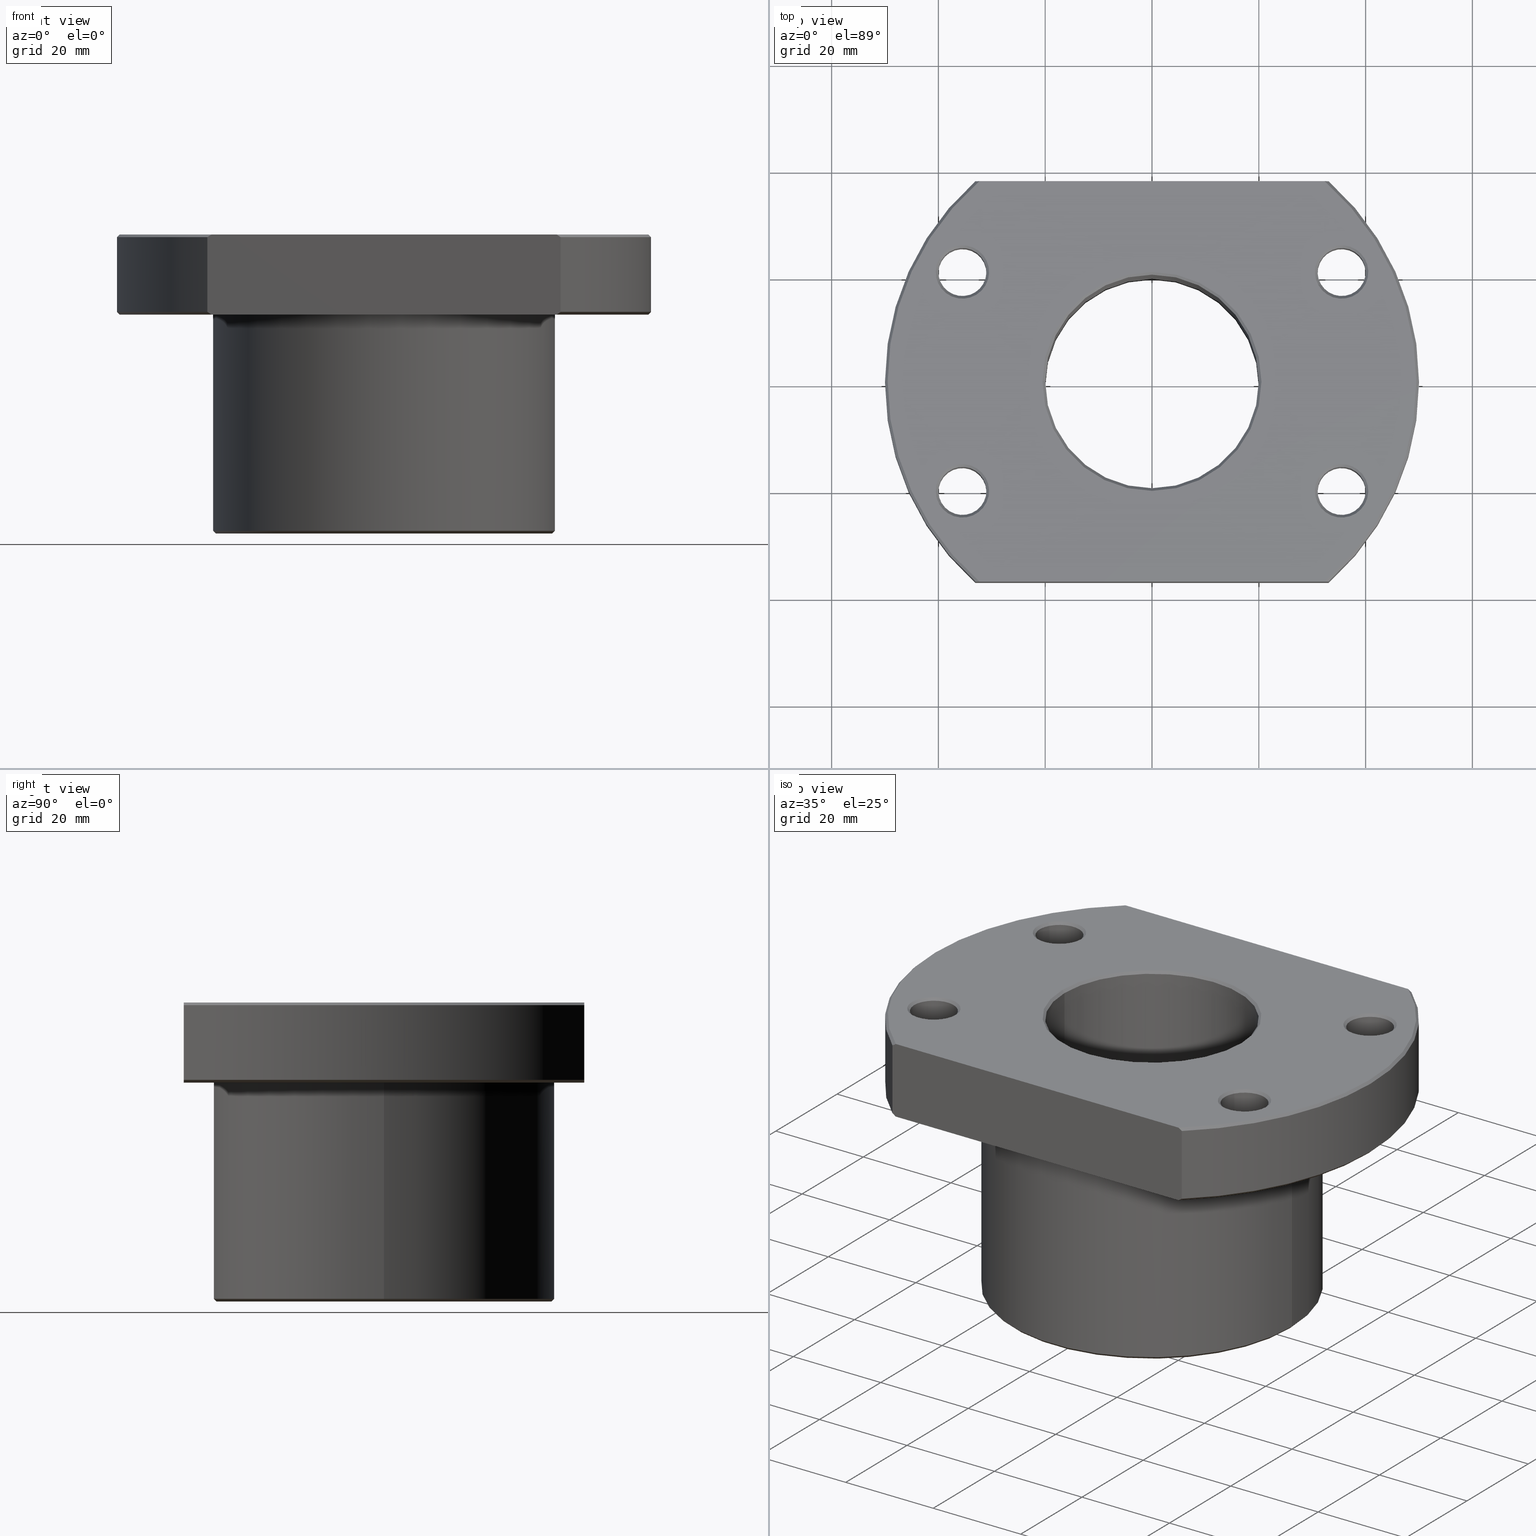
[diagram: canonical four-view strip — front | top / right | iso, engineering-drawing reading convention]
A machine part, canonical four-view strip (front | top / right | iso — engineering-drawing reading convention). The complete STEP part file that produces these views, byte-faithful:
ISO-10303-21;
HEADER;
FILE_DESCRIPTION(('CATIA V5 STEP Exchange'),'2;1');

FILE_NAME('C:\\Documents and Settings\\mycom\\\X2\BC14D0D5\X0\ \X2\D654BA74\X0\\\3D_CAD\\STEP\\STK (STEP)\\4005 STK\\4005 STK.stp','2006-12-14T05:31:15+00:00',('none'),('none'),'CATIA Version 5 Release 16 (IN-10)','CATIA V5 STEP AP214','none');

FILE_SCHEMA(('AUTOMOTIVE_DESIGN { 1 0 10303 214 1 1 1 1 }'));

ENDSEC;
/* file written by CATIA V5R16 */
DATA;
#5=PRODUCT('4005 STK','','',(#2)) ;
#2=PRODUCT_CONTEXT(' ',#1,'mechanical') ;
#1=APPLICATION_CONTEXT('automotive design') ;
#10=PRODUCT_DEFINITION(' ',' ',#6,#3) ;
#3=PRODUCT_DEFINITION_CONTEXT('part definition',#1,' ') ;
#11=PRODUCT_DEFINITION_SHAPE(' ',' ',#10) ;
#1285=MECHANICAL_DESIGN_GEOMETRIC_PRESENTATION_REPRESENTATION(' ',(#203,#227,#308,#332,#30),#17) ;
#20=SHAPE_REPRESENTATION(' ',(#19),#17) ;
#19=AXIS2_PLACEMENT_3D(' ',#18,$,$) ;
#35=AXIS2_PLACEMENT_3D('Cylinder Axis2P3D',#32,#33,#34) ;
#48=AXIS2_PLACEMENT_3D('Circle Axis2P3D',#46,#47,$) ;
#62=AXIS2_PLACEMENT_3D('Circle Axis2P3D',#60,#61,$) ;
#74=AXIS2_PLACEMENT_3D('Circle Axis2P3D',#72,#73,$) ;
#79=AXIS2_PLACEMENT_3D('Circle Axis2P3D',#77,#78,$) ;
#92=AXIS2_PLACEMENT_3D('Cone Axis2P3D',#89,#90,#91) ;
#103=AXIS2_PLACEMENT_3D('Circle Axis2P3D',#101,#102,$) ;
#123=AXIS2_PLACEMENT_3D('Cone Axis2P3D',#120,#121,#122) ;
#127=AXIS2_PLACEMENT_3D('Circle Axis2P3D',#125,#126,$) ;
#140=AXIS2_PLACEMENT_3D('Plane Axis2P3D',#137,#138,#139) ;
#148=AXIS2_PLACEMENT_3D('Circle Axis2P3D',#146,#147,$) ;
#157=AXIS2_PLACEMENT_3D('Circle Axis2P3D',#155,#156,$) ;
#168=AXIS2_PLACEMENT_3D('Cone Axis2P3D',#165,#166,#167) ;
#179=AXIS2_PLACEMENT_3D('Circle Axis2P3D',#177,#178,$) ;
#207=AXIS2_PLACEMENT_3D('Cone Axis2P3D',#204,#205,#206) ;
#211=AXIS2_PLACEMENT_3D('Circle Axis2P3D',#209,#210,$) ;
#231=AXIS2_PLACEMENT_3D('Cylinder Axis2P3D',#228,#229,#230) ;
#235=AXIS2_PLACEMENT_3D('Circle Axis2P3D',#233,#234,$) ;
#261=AXIS2_PLACEMENT_3D('Circle Axis2P3D',#259,#260,$) ;
#274=AXIS2_PLACEMENT_3D('Cone Axis2P3D',#271,#272,#273) ;
#285=AXIS2_PLACEMENT_3D('Circle Axis2P3D',#283,#284,$) ;
#312=AXIS2_PLACEMENT_3D('Cone Axis2P3D',#309,#310,#311) ;
#316=AXIS2_PLACEMENT_3D('Circle Axis2P3D',#314,#315,$) ;
#336=AXIS2_PLACEMENT_3D('Cone Axis2P3D',#333,#334,#335) ;
#349=AXIS2_PLACEMENT_3D('Circle Axis2P3D',#347,#348,$) ;
#363=AXIS2_PLACEMENT_3D('Circle Axis2P3D',#361,#362,$) ;
#376=AXIS2_PLACEMENT_3D('Cone Axis2P3D',#373,#374,#375) ;
#380=AXIS2_PLACEMENT_3D('Circle Axis2P3D',#378,#379,$) ;
#385=AXIS2_PLACEMENT_3D('Circle Axis2P3D',#383,#384,$) ;
#398=AXIS2_PLACEMENT_3D('Cylinder Axis2P3D',#395,#396,#397) ;
#402=AXIS2_PLACEMENT_3D('Circle Axis2P3D',#400,#401,$) ;
#428=AXIS2_PLACEMENT_3D('Circle Axis2P3D',#426,#427,$) ;
#441=AXIS2_PLACEMENT_3D('Cone Axis2P3D',#438,#439,#440) ;
#452=AXIS2_PLACEMENT_3D('Circle Axis2P3D',#450,#451,$) ;
#472=AXIS2_PLACEMENT_3D('Cone Axis2P3D',#469,#470,#471) ;
#476=AXIS2_PLACEMENT_3D('Circle Axis2P3D',#474,#475,$) ;
#489=AXIS2_PLACEMENT_3D('Cone Axis2P3D',#486,#487,#488) ;
#502=AXIS2_PLACEMENT_3D('Circle Axis2P3D',#500,#501,$) ;
#516=AXIS2_PLACEMENT_3D('Circle Axis2P3D',#514,#515,$) ;
#529=AXIS2_PLACEMENT_3D('Cone Axis2P3D',#526,#527,#528) ;
#533=AXIS2_PLACEMENT_3D('Circle Axis2P3D',#531,#532,$) ;
#538=AXIS2_PLACEMENT_3D('Circle Axis2P3D',#536,#537,$) ;
#551=AXIS2_PLACEMENT_3D('Cylinder Axis2P3D',#548,#549,#550) ;
#555=AXIS2_PLACEMENT_3D('Circle Axis2P3D',#553,#554,$) ;
#581=AXIS2_PLACEMENT_3D('Circle Axis2P3D',#579,#580,$) ;
#594=AXIS2_PLACEMENT_3D('Cone Axis2P3D',#591,#592,#593) ;
#605=AXIS2_PLACEMENT_3D('Circle Axis2P3D',#603,#604,$) ;
#625=AXIS2_PLACEMENT_3D('Cone Axis2P3D',#622,#623,#624) ;
#629=AXIS2_PLACEMENT_3D('Circle Axis2P3D',#627,#628,$) ;
#642=AXIS2_PLACEMENT_3D('Cone Axis2P3D',#639,#640,#641) ;
#655=AXIS2_PLACEMENT_3D('Circle Axis2P3D',#653,#654,$) ;
#669=AXIS2_PLACEMENT_3D('Circle Axis2P3D',#667,#668,$) ;
#682=AXIS2_PLACEMENT_3D('Cone Axis2P3D',#679,#680,#681) ;
#686=AXIS2_PLACEMENT_3D('Circle Axis2P3D',#684,#685,$) ;
#691=AXIS2_PLACEMENT_3D('Circle Axis2P3D',#689,#690,$) ;
#704=AXIS2_PLACEMENT_3D('Cylinder Axis2P3D',#701,#702,#703) ;
#708=AXIS2_PLACEMENT_3D('Circle Axis2P3D',#706,#707,$) ;
#734=AXIS2_PLACEMENT_3D('Circle Axis2P3D',#732,#733,$) ;
#747=AXIS2_PLACEMENT_3D('Cone Axis2P3D',#744,#745,#746) ;
#765=AXIS2_PLACEMENT_3D('Circle Axis2P3D',#763,#764,$) ;
#778=AXIS2_PLACEMENT_3D('Cone Axis2P3D',#775,#776,#777) ;
#782=AXIS2_PLACEMENT_3D('Circle Axis2P3D',#780,#781,$) ;
#795=AXIS2_PLACEMENT_3D('Cone Axis2P3D',#792,#793,#794) ;
#808=AXIS2_PLACEMENT_3D('Circle Axis2P3D',#806,#807,$) ;
#822=AXIS2_PLACEMENT_3D('Circle Axis2P3D',#820,#821,$) ;
#835=AXIS2_PLACEMENT_3D('Cone Axis2P3D',#832,#833,#834) ;
#839=AXIS2_PLACEMENT_3D('Circle Axis2P3D',#837,#838,$) ;
#844=AXIS2_PLACEMENT_3D('Circle Axis2P3D',#842,#843,$) ;
#857=AXIS2_PLACEMENT_3D('Cylinder Axis2P3D',#854,#855,#856) ;
#861=AXIS2_PLACEMENT_3D('Circle Axis2P3D',#859,#860,$) ;
#887=AXIS2_PLACEMENT_3D('Circle Axis2P3D',#885,#886,$) ;
#900=AXIS2_PLACEMENT_3D('Cone Axis2P3D',#897,#898,#899) ;
#911=AXIS2_PLACEMENT_3D('Circle Axis2P3D',#909,#910,$) ;
#931=AXIS2_PLACEMENT_3D('Cone Axis2P3D',#928,#929,#930) ;
#935=AXIS2_PLACEMENT_3D('Circle Axis2P3D',#933,#934,$) ;
#948=AXIS2_PLACEMENT_3D('Cone Axis2P3D',#945,#946,#947) ;
#952=AXIS2_PLACEMENT_3D('Circle Axis2P3D',#950,#951,$) ;
#969=AXIS2_PLACEMENT_3D('Circle Axis2P3D',#967,#968,$) ;
#990=AXIS2_PLACEMENT_3D('Cylinder Axis2P3D',#987,#988,#989) ;
#1008=AXIS2_PLACEMENT_3D('Circle Axis2P3D',#1006,#1007,$) ;
#1021=AXIS2_PLACEMENT_3D('Cone Axis2P3D',#1018,#1019,#1020) ;
#1041=AXIS2_PLACEMENT_3D('Circle Axis2P3D',#1039,#1040,$) ;
#1054=AXIS2_PLACEMENT_3D('Plane Axis2P3D',#1051,#1052,#1053) ;
#1072=AXIS2_PLACEMENT_3D('Circle Axis2P3D',#1070,#1071,$) ;
#1105=AXIS2_PLACEMENT_3D('Cone Axis2P3D',#1102,#1103,#1104) ;
#1117=AXIS2_PLACEMENT_3D('Circle Axis2P3D',#1115,#1116,$) ;
#1138=AXIS2_PLACEMENT_3D('Plane Axis2P3D',#1135,#1136,#1137) ;
#1142=AXIS2_PLACEMENT_3D('Circle Axis2P3D',#1140,#1141,$) ;
#1189=AXIS2_PLACEMENT_3D('Cylinder Axis2P3D',#1186,#1187,#1188) ;
#1207=AXIS2_PLACEMENT_3D('Circle Axis2P3D',#1205,#1206,$) ;
#1220=AXIS2_PLACEMENT_3D('Plane Axis2P3D',#1217,#1218,#1219) ;
#1247=AXIS2_PLACEMENT_3D('Plane Axis2P3D',#1244,#1245,#1246) ;
#1274=AXIS2_PLACEMENT_3D('Cone Axis2P3D',#1271,#1272,#1273) ;
#18=CARTESIAN_POINT(' ',(0.,0.,0.)) ;
#32=CARTESIAN_POINT('Axis2P3D Location',(0.,0.,20.5)) ;
#37=CARTESIAN_POINT('Line Origine',(-32.,3.91874033223E-015,20.5)) ;
#41=CARTESIAN_POINT('Vertex',(-32.,3.91874033223E-015,0.5)) ;
#43=CARTESIAN_POINT('Vertex',(-32.,3.91874033223E-015,41.)) ;
#46=CARTESIAN_POINT('Axis2P3D Location',(0.,0.,41.)) ;
#50=CARTESIAN_POINT('Vertex',(32.,0.,41.)) ;
#53=CARTESIAN_POINT('Line Origine',(32.,0.,20.5)) ;
#57=CARTESIAN_POINT('Vertex',(32.,-7.83748066446E-015,0.5)) ;
#60=CARTESIAN_POINT('Axis2P3D Location',(0.,0.,0.5)) ;
#72=CARTESIAN_POINT('Axis2P3D Location',(0.,0.,41.)) ;
#77=CARTESIAN_POINT('Axis2P3D Location',(0.,0.,0.5)) ;
#89=CARTESIAN_POINT('Axis2P3D Location',(1.95742622406E-015,4.47641923529E-013,-31.5)) ;
#94=CARTESIAN_POINT('Line Origine',(31.75,-1.57691871025E-015,0.25)) ;
#98=CARTESIAN_POINT('Vertex',(31.5,-9.30775367804E-015,0.)) ;
#101=CARTESIAN_POINT('Axis2P3D Location',(1.95933979202E-015,5.04870979341E-029,-3.5527136788E-015)) ;
#105=CARTESIAN_POINT('Vertex',(-31.5,4.71266272311E-007,0.)) ;
#108=CARTESIAN_POINT('Line Origine',(-31.75,4.75006467827E-007,0.25)) ;
#120=CARTESIAN_POINT('Axis2P3D Location',(-3.11750625315E-013,-4.4408920985E-013,-31.5)) ;
#125=CARTESIAN_POINT('Axis2P3D Location',(-3.99680288865E-015,3.5527136788E-015,-2.34479102801E-013)) ;
#137=CARTESIAN_POINT('Axis2P3D Location',(0.,0.,0.)) ;
#146=CARTESIAN_POINT('Axis2P3D Location',(7.1054273576E-015,-1.33226762955E-015,0.)) ;
#150=CARTESIAN_POINT('Vertex',(-20.5,2.90764452139E-007,0.)) ;
#152=CARTESIAN_POINT('Vertex',(20.5,-6.35315368022E-015,0.)) ;
#155=CARTESIAN_POINT('Axis2P3D Location',(-3.5527136788E-015,1.7763568394E-015,0.)) ;
#165=CARTESIAN_POINT('Axis2P3D Location',(-8.881784197E-016,1.45661260831E-013,20.5)) ;
#170=CARTESIAN_POINT('Line Origine',(-20.25,-3.10862446895E-015,0.25)) ;
#174=CARTESIAN_POINT('Vertex',(-20.,2.44921270764E-015,0.5)) ;
#177=CARTESIAN_POINT('Axis2P3D Location',(-8.881784197E-016,3.5527136788E-015,0.5)) ;
#181=CARTESIAN_POINT('Vertex',(20.,-4.89842541529E-015,0.5)) ;
#184=CARTESIAN_POINT('Line Origine',(20.25,-1.487698853E-014,0.25)) ;
#204=CARTESIAN_POINT('Axis2P3D Location',(-2.32036612147E-014,0.,20.5)) ;
#209=CARTESIAN_POINT('Axis2P3D Location',(-9.99200722163E-016,0.,0.5)) ;
#228=CARTESIAN_POINT('Axis2P3D Location',(0.,0.,20.5)) ;
#233=CARTESIAN_POINT('Axis2P3D Location',(0.,0.,55.5)) ;
#237=CARTESIAN_POINT('Vertex',(20.,-4.89842541529E-015,55.5)) ;
#239=CARTESIAN_POINT('Vertex',(-20.,2.44921270764E-015,55.5)) ;
#242=CARTESIAN_POINT('Line Origine',(-20.,2.44921270764E-015,41.)) ;
#247=CARTESIAN_POINT('Line Origine',(20.,0.,41.)) ;
#259=CARTESIAN_POINT('Axis2P3D Location',(0.,0.,55.5)) ;
#271=CARTESIAN_POINT('Axis2P3D Location',(-8.881784197E-016,1.45661260831E-013,35.5)) ;
#276=CARTESIAN_POINT('Line Origine',(-20.25,8.31281407265E-007,55.75)) ;
#280=CARTESIAN_POINT('Vertex',(-20.5,2.90764452139E-007,56.)) ;
#283=CARTESIAN_POINT('Axis2P3D Location',(-8.881784197E-016,1.51461293802E-028,56.)) ;
#287=CARTESIAN_POINT('Vertex',(20.5,-6.35315368022E-015,56.)) ;
#290=CARTESIAN_POINT('Line Origine',(20.25,-1.487698853E-014,55.75)) ;
#309=CARTESIAN_POINT('Axis2P3D Location',(-2.32036612147E-014,0.,35.5)) ;
#314=CARTESIAN_POINT('Axis2P3D Location',(-4.4408920985E-016,0.,56.)) ;
#333=CARTESIAN_POINT('Axis2P3D Location',(-35.5070415552,-20.5,46.)) ;
#338=CARTESIAN_POINT('Line Origine',(-39.6206622231,-22.875,41.25)) ;
#342=CARTESIAN_POINT('Vertex',(-39.8371685748,-22.9999999988,41.)) ;
#344=CARTESIAN_POINT('Vertex',(-39.4041558722,-22.75,41.5)) ;
#347=CARTESIAN_POINT('Axis2P3D Location',(-35.5070415552,-20.5,41.5)) ;
#351=CARTESIAN_POINT('Vertex',(-31.6099272381,-18.25,41.5)) ;
#354=CARTESIAN_POINT('Line Origine',(-31.3934208872,-18.125,41.25)) ;
#358=CARTESIAN_POINT('Vertex',(-31.1769145362,-18.,41.)) ;
#361=CARTESIAN_POINT('Axis2P3D Location',(-35.5070415552,-20.5,41.)) ;
#373=CARTESIAN_POINT('Axis2P3D Location',(-35.5070415552,-20.5,46.)) ;
#378=CARTESIAN_POINT('Axis2P3D Location',(-35.5070415552,-20.5,41.5)) ;
#383=CARTESIAN_POINT('Axis2P3D Location',(-35.5070415552,-20.5,41.)) ;
#395=CARTESIAN_POINT('Axis2P3D Location',(-35.5070415552,-20.5,48.5)) ;
#400=CARTESIAN_POINT('Axis2P3D Location',(-35.5070415552,-20.5,55.5)) ;
#404=CARTESIAN_POINT('Vertex',(-39.4041558722,-22.75,55.5)) ;
#406=CARTESIAN_POINT('Vertex',(-31.6099272381,-18.25,55.5)) ;
#409=CARTESIAN_POINT('Line Origine',(-31.6099272381,-18.25,48.5)) ;
#414=CARTESIAN_POINT('Line Origine',(-39.4041558722,-22.75,48.5)) ;
#426=CARTESIAN_POINT('Axis2P3D Location',(-35.5070415552,-20.5,55.5)) ;
#438=CARTESIAN_POINT('Axis2P3D Location',(-35.5070415552,-20.5,51.)) ;
#443=CARTESIAN_POINT('Line Origine',(-39.6206623086,-22.8749998519,55.75)) ;
#447=CARTESIAN_POINT('Vertex',(-39.8371685748,-22.9999999988,56.)) ;
#450=CARTESIAN_POINT('Axis2P3D Location',(-35.5070415552,-20.5,56.)) ;
#454=CARTESIAN_POINT('Vertex',(-31.1769145362,-18.,56.)) ;
#457=CARTESIAN_POINT('Line Origine',(-31.3934208872,-18.125,55.75)) ;
#469=CARTESIAN_POINT('Axis2P3D Location',(-35.5070415552,-20.5,51.)) ;
#474=CARTESIAN_POINT('Axis2P3D Location',(-35.5070415552,-20.5,56.)) ;
#486=CARTESIAN_POINT('Axis2P3D Location',(-35.5070415552,20.5,46.)) ;
#491=CARTESIAN_POINT('Line Origine',(-39.6206622231,22.875,41.25)) ;
#495=CARTESIAN_POINT('Vertex',(-39.8371685734,23.0000000012,41.)) ;
#497=CARTESIAN_POINT('Vertex',(-39.4041558722,22.75,41.5)) ;
#500=CARTESIAN_POINT('Axis2P3D Location',(-35.5070415552,20.5,41.5)) ;
#504=CARTESIAN_POINT('Vertex',(-31.6099272381,18.25,41.5)) ;
#507=CARTESIAN_POINT('Line Origine',(-31.3934208872,18.125,41.25)) ;
#511=CARTESIAN_POINT('Vertex',(-31.1769145362,18.,41.)) ;
#514=CARTESIAN_POINT('Axis2P3D Location',(-35.5070415552,20.5,41.)) ;
#526=CARTESIAN_POINT('Axis2P3D Location',(-35.5070415552,20.5,46.)) ;
#531=CARTESIAN_POINT('Axis2P3D Location',(-35.5070415552,20.5,41.5)) ;
#536=CARTESIAN_POINT('Axis2P3D Location',(-35.5070415552,20.5,41.)) ;
#548=CARTESIAN_POINT('Axis2P3D Location',(-35.5070415552,20.5,48.5)) ;
#553=CARTESIAN_POINT('Axis2P3D Location',(-35.5070415552,20.5,55.5)) ;
#557=CARTESIAN_POINT('Vertex',(-39.4041558722,22.75,55.5)) ;
#559=CARTESIAN_POINT('Vertex',(-31.6099272381,18.25,55.5)) ;
#562=CARTESIAN_POINT('Line Origine',(-31.6099272381,18.25,48.5)) ;
#567=CARTESIAN_POINT('Line Origine',(-39.4041558722,22.75,48.5)) ;
#579=CARTESIAN_POINT('Axis2P3D Location',(-35.5070415552,20.5,55.5)) ;
#591=CARTESIAN_POINT('Axis2P3D Location',(-35.5070415552,20.5,51.)) ;
#596=CARTESIAN_POINT('Line Origine',(-39.6206621377,22.8750001481,55.75)) ;
#600=CARTESIAN_POINT('Vertex',(-39.8371685734,23.0000000012,56.)) ;
#603=CARTESIAN_POINT('Axis2P3D Location',(-35.5070415552,20.5,56.)) ;
#607=CARTESIAN_POINT('Vertex',(-31.1769145362,18.,56.)) ;
#610=CARTESIAN_POINT('Line Origine',(-31.3934208872,18.125,55.75)) ;
#622=CARTESIAN_POINT('Axis2P3D Location',(-35.5070415552,20.5,51.)) ;
#627=CARTESIAN_POINT('Axis2P3D Location',(-35.5070415552,20.5,56.)) ;
#639=CARTESIAN_POINT('Axis2P3D Location',(35.5070415552,-20.5,51.)) ;
#644=CARTESIAN_POINT('Line Origine',(31.3934208872,-18.125,55.75)) ;
#648=CARTESIAN_POINT('Vertex',(31.6099272381,-18.25,55.5)) ;
#650=CARTESIAN_POINT('Vertex',(31.1769145362,-18.,56.)) ;
#653=CARTESIAN_POINT('Axis2P3D Location',(35.5070415552,-20.5,56.)) ;
#657=CARTESIAN_POINT('Vertex',(39.8371686641,-22.9999998441,56.)) ;
#660=CARTESIAN_POINT('Line Origine',(39.6206623086,-22.8749998519,55.75)) ;
#664=CARTESIAN_POINT('Vertex',(39.4041558722,-22.75,55.5)) ;
#667=CARTESIAN_POINT('Axis2P3D Location',(35.5070415552,-20.5,55.5)) ;
#679=CARTESIAN_POINT('Axis2P3D Location',(35.5070415552,-20.5,51.)) ;
#684=CARTESIAN_POINT('Axis2P3D Location',(35.5070415552,-20.5,56.)) ;
#689=CARTESIAN_POINT('Axis2P3D Location',(35.5070415552,-20.5,55.5)) ;
#701=CARTESIAN_POINT('Axis2P3D Location',(35.5070415552,-20.5,48.5)) ;
#706=CARTESIAN_POINT('Axis2P3D Location',(35.5070415552,-20.5,41.5)) ;
#710=CARTESIAN_POINT('Vertex',(39.4041558722,-22.75,41.5)) ;
#712=CARTESIAN_POINT('Vertex',(31.6099272381,-18.25,41.5)) ;
#715=CARTESIAN_POINT('Line Origine',(39.4041558722,-22.75,48.5)) ;
#720=CARTESIAN_POINT('Line Origine',(31.6099272381,-18.25,48.5)) ;
#732=CARTESIAN_POINT('Axis2P3D Location',(35.5070415552,-20.5,41.5)) ;
#744=CARTESIAN_POINT('Axis2P3D Location',(35.5070415552,-20.5,46.)) ;
#749=CARTESIAN_POINT('Line Origine',(39.6206622231,-22.875,41.25)) ;
#753=CARTESIAN_POINT('Vertex',(39.8371685734,-23.0000000012,41.)) ;
#756=CARTESIAN_POINT('Line Origine',(31.3934208872,-18.125,41.25)) ;
#760=CARTESIAN_POINT('Vertex',(31.1769145362,-18.,41.)) ;
#763=CARTESIAN_POINT('Axis2P3D Location',(35.5070415552,-20.5,41.)) ;
#775=CARTESIAN_POINT('Axis2P3D Location',(35.5070415552,-20.5,46.)) ;
#780=CARTESIAN_POINT('Axis2P3D Location',(35.5070415552,-20.5,41.)) ;
#792=CARTESIAN_POINT('Axis2P3D Location',(35.5070415552,20.5,46.)) ;
#797=CARTESIAN_POINT('Line Origine',(39.6206622231,22.875,41.25)) ;
#801=CARTESIAN_POINT('Vertex',(39.8371685748,22.9999999988,41.)) ;
#803=CARTESIAN_POINT('Vertex',(39.4041558722,22.75,41.5)) ;
#806=CARTESIAN_POINT('Axis2P3D Location',(35.5070415552,20.5,41.5)) ;
#810=CARTESIAN_POINT('Vertex',(31.6099272381,18.25,41.5)) ;
#813=CARTESIAN_POINT('Line Origine',(31.3934208872,18.125,41.25)) ;
#817=CARTESIAN_POINT('Vertex',(31.1769145362,18.,41.)) ;
#820=CARTESIAN_POINT('Axis2P3D Location',(35.5070415552,20.5,41.)) ;
#832=CARTESIAN_POINT('Axis2P3D Location',(35.5070415552,20.5,46.)) ;
#837=CARTESIAN_POINT('Axis2P3D Location',(35.5070415552,20.5,41.5)) ;
#842=CARTESIAN_POINT('Axis2P3D Location',(35.5070415552,20.5,41.)) ;
#854=CARTESIAN_POINT('Axis2P3D Location',(35.5070415552,20.5,48.5)) ;
#859=CARTESIAN_POINT('Axis2P3D Location',(35.5070415552,20.5,55.5)) ;
#863=CARTESIAN_POINT('Vertex',(39.4041558722,22.75,55.5)) ;
#865=CARTESIAN_POINT('Vertex',(31.6099272381,18.25,55.5)) ;
#868=CARTESIAN_POINT('Line Origine',(31.6099272381,18.25,48.5)) ;
#873=CARTESIAN_POINT('Line Origine',(39.4041558722,22.75,48.5)) ;
#885=CARTESIAN_POINT('Axis2P3D Location',(35.5070415552,20.5,55.5)) ;
#897=CARTESIAN_POINT('Axis2P3D Location',(35.5070415552,20.5,51.)) ;
#902=CARTESIAN_POINT('Line Origine',(39.6206623086,22.8749998519,55.75)) ;
#906=CARTESIAN_POINT('Vertex',(39.8371685748,22.9999999988,56.)) ;
#909=CARTESIAN_POINT('Axis2P3D Location',(35.5070415552,20.5,56.)) ;
#913=CARTESIAN_POINT('Vertex',(31.1769145362,18.,56.)) ;
#916=CARTESIAN_POINT('Line Origine',(31.3934208872,18.125,55.75)) ;
#928=CARTESIAN_POINT('Axis2P3D Location',(35.5070415552,20.5,51.)) ;
#933=CARTESIAN_POINT('Axis2P3D Location',(35.5070415552,20.5,56.)) ;
#945=CARTESIAN_POINT('Axis2P3D Location',(-6.96331881045E-013,8.34856635781E-013,105.5)) ;
#950=CARTESIAN_POINT('Axis2P3D Location',(7.1054273576E-015,6.2902372647E-015,56.)) ;
#954=CARTESIAN_POINT('Vertex',(32.3109888428,-37.5,56.)) ;
#956=CARTESIAN_POINT('Vertex',(32.3109888428,37.5,56.)) ;
#960=CARTESIAN_POINT('Control Point',(33.0718913883,-37.5,55.5)) ;
#961=CARTESIAN_POINT('Control Point',(32.8174605944,-37.5,55.6682901516)) ;
#962=CARTESIAN_POINT('Control Point',(32.5638169076,-37.499999903,55.834967249)) ;
#963=CARTESIAN_POINT('Control Point',(32.3109889554,-37.499999903,56.)) ;
#964=CARTESIAN_POINT('Vertex',(33.0718913883,-37.5,55.5)) ;
#967=CARTESIAN_POINT('Axis2P3D Location',(1.42108547152E-014,-2.07912029607E-015,55.5)) ;
#971=CARTESIAN_POINT('Vertex',(33.0718913883,37.5,55.5)) ;
#975=CARTESIAN_POINT('Control Point',(33.0718913883,37.5,55.5)) ;
#976=CARTESIAN_POINT('Control Point',(32.8174604899,37.5,55.6682902208)) ;
#977=CARTESIAN_POINT('Control Point',(32.5638166581,37.5000002073,55.8349671832)) ;
#978=CARTESIAN_POINT('Control Point',(32.3109886022,37.5000002073,56.)) ;
#987=CARTESIAN_POINT('Axis2P3D Location',(0.,0.,48.5)) ;
#992=CARTESIAN_POINT('Line Origine',(33.0718913883,37.5,48.5)) ;
#996=CARTESIAN_POINT('Vertex',(33.0718913883,37.5,41.5)) ;
#999=CARTESIAN_POINT('Line Origine',(33.0718913883,-37.5,48.5)) ;
#1003=CARTESIAN_POINT('Vertex',(33.0718913883,-37.5,41.5)) ;
#1006=CARTESIAN_POINT('Axis2P3D Location',(0.,0.,41.5)) ;
#1018=CARTESIAN_POINT('Axis2P3D Location',(-6.96331881045E-013,8.34856635781E-013,-8.5)) ;
#1024=CARTESIAN_POINT('Control Point',(33.0718916281,37.4999997886,41.5)) ;
#1025=CARTESIAN_POINT('Control Point',(32.8174607302,37.4999997886,41.3317097784)) ;
#1026=CARTESIAN_POINT('Control Point',(32.5638168981,37.5,41.1650328177)) ;
#1027=CARTESIAN_POINT('Control Point',(32.3109888428,37.5,41.)) ;
#1028=CARTESIAN_POINT('Vertex',(32.3109888428,37.5,41.)) ;
#1032=CARTESIAN_POINT('Control Point',(33.0718912749,-37.5000001,41.5)) ;
#1033=CARTESIAN_POINT('Control Point',(32.8174604811,-37.5000001,41.331709849)) ;
#1034=CARTESIAN_POINT('Control Point',(32.5638167949,-37.5,41.1650327503)) ;
#1035=CARTESIAN_POINT('Control Point',(32.3109888428,-37.5,41.)) ;
#1036=CARTESIAN_POINT('Vertex',(32.3109888428,-37.5,41.)) ;
#1039=CARTESIAN_POINT('Axis2P3D Location',(7.1054273576E-015,6.2902372647E-015,41.)) ;
#1051=CARTESIAN_POINT('Axis2P3D Location',(0.,0.,56.)) ;
#1056=CARTESIAN_POINT('Line Origine',(-7.1054273576E-015,-37.5,56.)) ;
#1060=CARTESIAN_POINT('Vertex',(-32.3109888428,-37.5,56.)) ;
#1063=CARTESIAN_POINT('Line Origine',(7.1054273576E-015,37.5,56.)) ;
#1067=CARTESIAN_POINT('Vertex',(-32.3109888428,37.5,56.)) ;
#1070=CARTESIAN_POINT('Axis2P3D Location',(0.,2.1901916328E-015,56.)) ;
#1102=CARTESIAN_POINT('Axis2P3D Location',(-1.4068746168E-012,-1.52321953633E-013,105.5)) ;
#1108=CARTESIAN_POINT('Control Point',(-33.0718913883,37.5,55.5)) ;
#1109=CARTESIAN_POINT('Control Point',(-32.8174605944,37.5,55.6682901516)) ;
#1110=CARTESIAN_POINT('Control Point',(-32.5638169076,37.499999903,55.834967249)) ;
#1111=CARTESIAN_POINT('Control Point',(-32.3109889554,37.499999903,56.)) ;
#1112=CARTESIAN_POINT('Vertex',(-33.0718913883,37.5,55.5)) ;
#1115=CARTESIAN_POINT('Axis2P3D Location',(1.42108547152E-014,3.06151588456E-015,55.5)) ;
#1119=CARTESIAN_POINT('Vertex',(-33.0718913883,-37.5,55.5)) ;
#1123=CARTESIAN_POINT('Control Point',(-33.0718913883,-37.5,55.5)) ;
#1124=CARTESIAN_POINT('Control Point',(-32.8174604899,-37.5,55.6682902208)) ;
#1125=CARTESIAN_POINT('Control Point',(-32.5638166581,-37.5000002073,55.8349671832)) ;
#1126=CARTESIAN_POINT('Control Point',(-32.3109886022,-37.5000002073,56.)) ;
#1135=CARTESIAN_POINT('Axis2P3D Location',(0.,0.,41.)) ;
#1140=CARTESIAN_POINT('Axis2P3D Location',(-7.1054273576E-015,-2.38421233569E-016,41.)) ;
#1144=CARTESIAN_POINT('Vertex',(-32.3109888428,37.5,41.)) ;
#1146=CARTESIAN_POINT('Vertex',(-32.3109888428,-37.5,41.)) ;
#1149=CARTESIAN_POINT('Line Origine',(-7.1054273576E-015,37.5,41.)) ;
#1154=CARTESIAN_POINT('Line Origine',(-7.1054273576E-015,-37.5,41.)) ;
#1186=CARTESIAN_POINT('Axis2P3D Location',(0.,0.,48.5)) ;
#1191=CARTESIAN_POINT('Line Origine',(-33.0718913883,-37.5,48.5)) ;
#1195=CARTESIAN_POINT('Vertex',(-33.0718913883,-37.5,41.5)) ;
#1198=CARTESIAN_POINT('Line Origine',(-33.0718913883,37.5,48.5)) ;
#1202=CARTESIAN_POINT('Vertex',(-33.0718913883,37.5,41.5)) ;
#1205=CARTESIAN_POINT('Axis2P3D Location',(0.,0.,41.5)) ;
#1217=CARTESIAN_POINT('Axis2P3D Location',(-33.0718913883,37.5,41.)) ;
#1223=CARTESIAN_POINT('Control Point',(-33.0718913883,37.5,41.5)) ;
#1224=CARTESIAN_POINT('Control Point',(-32.9347675964,37.5,41.4093011373)) ;
#1225=CARTESIAN_POINT('Control Point',(-32.7978354704,37.5,41.3189934659)) ;
#1226=CARTESIAN_POINT('Control Point',(-32.6610914729,37.5,41.229075588)) ;
#1227=CARTESIAN_POINT('Control Point',(-32.5090778335,37.5,41.1294141813)) ;
#1228=CARTESIAN_POINT('Control Point',(-32.357306865,37.5,41.0302443211)) ;
#1229=CARTESIAN_POINT('Control Point',(-32.3418650021,37.5,41.0201577817)) ;
#1230=CARTESIAN_POINT('Control Point',(-32.3264256631,37.5,41.010076342)) ;
#1231=CARTESIAN_POINT('Control Point',(-32.3109888428,37.5,41.)) ;
#1244=CARTESIAN_POINT('Axis2P3D Location',(-33.0718913883,-37.5,41.)) ;
#1250=CARTESIAN_POINT('Control Point',(-33.0718913883,-37.5,41.5)) ;
#1251=CARTESIAN_POINT('Control Point',(-32.9347675971,-37.5,41.4093011367)) ;
#1252=CARTESIAN_POINT('Control Point',(-32.7978354717,-37.5,41.3189934648)) ;
#1253=CARTESIAN_POINT('Control Point',(-32.6610917857,-37.5,41.2290757935)) ;
#1254=CARTESIAN_POINT('Control Point',(-32.5090780838,-37.5,41.1294143452)) ;
#1255=CARTESIAN_POINT('Control Point',(-32.3573070531,-37.5,41.030244444)) ;
#1256=CARTESIAN_POINT('Control Point',(-32.3418651275,-37.5,41.0201578635)) ;
#1257=CARTESIAN_POINT('Control Point',(-32.3264257258,-37.5,41.0100763829)) ;
#1258=CARTESIAN_POINT('Control Point',(-32.3109888428,-37.5,41.)) ;
#1271=CARTESIAN_POINT('Axis2P3D Location',(-1.41398004416E-012,-1.52321953633E-013,-8.5)) ;
#33=DIRECTION('Axis2P3D Direction',(0.,0.,1.)) ;
#34=DIRECTION('Axis2P3D XDirection',(1.,0.,0.)) ;
#38=DIRECTION('Vector Direction',(0.,0.,1.)) ;
#47=DIRECTION('Axis2P3D Direction',(0.,0.,1.)) ;
#54=DIRECTION('Vector Direction',(0.,0.,1.)) ;
#61=DIRECTION('Axis2P3D Direction',(0.,0.,1.)) ;
#73=DIRECTION('Axis2P3D Direction',(0.,0.,1.)) ;
#78=DIRECTION('Axis2P3D Direction',(0.,0.,1.)) ;
#90=DIRECTION('Axis2P3D Direction',(6.07481892054E-020,-1.42108547152E-014,1.)) ;
#91=DIRECTION('Axis2P3D XDirection',(1.,2.83274922616E-016,0.)) ;
#95=DIRECTION('Vector Direction',(0.707106781187,-1.00045886483E-014,0.707106781187)) ;
#102=DIRECTION('Axis2P3D Direction',(4.02557876976E-030,-1.42108547152E-014,1.)) ;
#109=DIRECTION('Vector Direction',(-0.707106781187,1.05788969442E-008,0.707106781187)) ;
#121=DIRECTION('Axis2P3D Direction',(9.7699626167E-015,1.42108547152E-014,1.)) ;
#122=DIRECTION('Axis2P3D XDirection',(-0.986449401248,0.164065775768,7.24398958781E-015)) ;
#126=DIRECTION('Axis2P3D Direction',(2.56290521864E-015,1.54095289316E-014,1.)) ;
#138=DIRECTION('Axis2P3D Direction',(0.,0.,1.)) ;
#139=DIRECTION('Axis2P3D XDirection',(1.,0.,0.)) ;
#147=DIRECTION('Axis2P3D Direction',(0.,0.,1.)) ;
#156=DIRECTION('Axis2P3D Direction',(0.,0.,1.)) ;
#166=DIRECTION('Axis2P3D Direction',(0.,-7.1054273576E-015,-1.)) ;
#167=DIRECTION('Axis2P3D XDirection',(-0.985938450058,0.167108864807,-1.18538011437E-015)) ;
#171=DIRECTION('Vector Direction',(-0.707106781187,-5.02429586779E-015,-0.707106781187)) ;
#178=DIRECTION('Axis2P3D Direction',(1.17068349794E-015,6.90700565047E-015,1.)) ;
#185=DIRECTION('Vector Direction',(0.707106781187,-5.65233285126E-015,-0.707106781187)) ;
#205=DIRECTION('Axis2P3D Direction',(1.11022302463E-015,0.,-1.)) ;
#206=DIRECTION('Axis2P3D XDirection',(1.,5.97368953084E-017,1.05367121277E-015)) ;
#210=DIRECTION('Axis2P3D Direction',(-3.96182715644E-048,6.6321276591E-032,1.)) ;
#229=DIRECTION('Axis2P3D Direction',(0.,0.,1.)) ;
#230=DIRECTION('Axis2P3D XDirection',(1.,0.,0.)) ;
#234=DIRECTION('Axis2P3D Direction',(0.,0.,1.)) ;
#243=DIRECTION('Vector Direction',(0.,0.,1.)) ;
#248=DIRECTION('Vector Direction',(0.,0.,1.)) ;
#260=DIRECTION('Axis2P3D Direction',(0.,0.,1.)) ;
#272=DIRECTION('Axis2P3D Direction',(0.,-7.1054273576E-015,1.)) ;
#273=DIRECTION('Axis2P3D XDirection',(-0.985938450058,0.167108864807,1.18538011437E-015)) ;
#277=DIRECTION('Vector Direction',(-0.707106781187,2.90273882998E-008,0.707106781187)) ;
#284=DIRECTION('Axis2P3D Direction',(-1.17068349794E-015,-6.90700565047E-015,1.)) ;
#291=DIRECTION('Vector Direction',(0.707106781187,-5.65233285126E-015,0.707106781187)) ;
#310=DIRECTION('Axis2P3D Direction',(1.11022302463E-015,0.,1.)) ;
#311=DIRECTION('Axis2P3D XDirection',(1.,5.97368953084E-017,-1.05367121277E-015)) ;
#315=DIRECTION('Axis2P3D Direction',(3.96182715644E-048,-6.6321276591E-032,1.)) ;
#334=DIRECTION('Axis2P3D Direction',(-2.84217094304E-014,-3.5527136788E-014,-1.)) ;
#335=DIRECTION('Axis2P3D XDirection',(-0.911721745177,-0.410808300028,4.05663416917E-014)) ;
#339=DIRECTION('Vector Direction',(-0.612372435696,-0.353553390593,-0.707106781187)) ;
#348=DIRECTION('Axis2P3D Direction',(-8.50988942379E-015,1.88863059393E-014,1.)) ;
#355=DIRECTION('Vector Direction',(0.612372435696,0.353553390593,-0.707106781187)) ;
#362=DIRECTION('Axis2P3D Direction',(-8.50988942379E-015,1.88863059393E-014,1.)) ;
#374=DIRECTION('Axis2P3D Direction',(-7.1054273576E-014,7.1054273576E-014,-1.)) ;
#375=DIRECTION('Axis2P3D XDirection',(0.866025403784,0.5,-2.59466536145E-014)) ;
#379=DIRECTION('Axis2P3D Direction',(4.85309713761E-014,-8.40581081641E-014,1.)) ;
#384=DIRECTION('Axis2P3D Direction',(4.85309713761E-014,-8.40581081641E-014,1.)) ;
#396=DIRECTION('Axis2P3D Direction',(0.,0.,1.)) ;
#397=DIRECTION('Axis2P3D XDirection',(0.866025403784,0.5,0.)) ;
#401=DIRECTION('Axis2P3D Direction',(0.,0.,1.)) ;
#410=DIRECTION('Vector Direction',(0.,0.,1.)) ;
#415=DIRECTION('Vector Direction',(0.,0.,1.)) ;
#427=DIRECTION('Axis2P3D Direction',(0.,0.,1.)) ;
#439=DIRECTION('Axis2P3D Direction',(-2.84217094304E-014,-3.5527136788E-014,1.)) ;
#440=DIRECTION('Axis2P3D XDirection',(-0.911721745177,-0.410808300028,-4.05663416917E-014)) ;
#444=DIRECTION('Vector Direction',(-0.612372448421,-0.353553368552,0.707106781187)) ;
#451=DIRECTION('Axis2P3D Direction',(8.50988942379E-015,-1.88863059393E-014,1.)) ;
#458=DIRECTION('Vector Direction',(0.612372435696,0.353553390593,0.707106781187)) ;
#470=DIRECTION('Axis2P3D Direction',(-7.1054273576E-014,7.1054273576E-014,1.)) ;
#471=DIRECTION('Axis2P3D XDirection',(0.866025403784,0.5,2.59466536145E-014)) ;
#475=DIRECTION('Axis2P3D Direction',(-4.85309713761E-014,8.40581081641E-014,1.)) ;
#487=DIRECTION('Axis2P3D Direction',(-4.26325641456E-014,7.1054273576E-015,-1.)) ;
#488=DIRECTION('Axis2P3D XDirection',(-0.81163129648,0.584170042517,3.8854125971E-014)) ;
#492=DIRECTION('Vector Direction',(-0.612372435696,0.353553390593,-0.707106781187)) ;
#501=DIRECTION('Axis2P3D Direction',(1.11796591005E-014,1.55327396983E-014,1.)) ;
#508=DIRECTION('Vector Direction',(0.612372435696,-0.353553390593,-0.707106781187)) ;
#515=DIRECTION('Axis2P3D Direction',(1.11796591005E-014,1.55327396983E-014,1.)) ;
#527=DIRECTION('Axis2P3D Direction',(1.42108547152E-014,9.94759830064E-014,-1.)) ;
#528=DIRECTION('Axis2P3D XDirection',(0.866025403784,-0.5,-3.7537036955E-014)) ;
#532=DIRECTION('Axis2P3D Direction',(-4.66270778538E-014,-8.07604678512E-014,1.)) ;
#537=DIRECTION('Axis2P3D Direction',(-4.66270778538E-014,-8.07604678512E-014,1.)) ;
#549=DIRECTION('Axis2P3D Direction',(0.,0.,1.)) ;
#550=DIRECTION('Axis2P3D XDirection',(0.866025403784,-0.5,0.)) ;
#554=DIRECTION('Axis2P3D Direction',(0.,0.,1.)) ;
#563=DIRECTION('Vector Direction',(0.,0.,1.)) ;
#568=DIRECTION('Vector Direction',(0.,0.,1.)) ;
#580=DIRECTION('Axis2P3D Direction',(0.,0.,1.)) ;
#592=DIRECTION('Axis2P3D Direction',(-4.26325641456E-014,7.1054273576E-015,1.)) ;
#593=DIRECTION('Axis2P3D XDirection',(-0.81163129648,0.584170042517,-3.8854125971E-014)) ;
#597=DIRECTION('Vector Direction',(-0.61237242297,0.353553412634,0.707106781187)) ;
#604=DIRECTION('Axis2P3D Direction',(-1.11796591005E-014,-1.55327396983E-014,1.)) ;
#611=DIRECTION('Vector Direction',(0.612372435696,-0.353553390593,0.707106781187)) ;
#623=DIRECTION('Axis2P3D Direction',(1.42108547152E-014,9.94759830064E-014,1.)) ;
#624=DIRECTION('Axis2P3D XDirection',(0.866025403784,-0.5,3.7537036955E-014)) ;
#628=DIRECTION('Axis2P3D Direction',(4.66270778538E-014,8.07604678512E-014,1.)) ;
#640=DIRECTION('Axis2P3D Direction',(1.42108547152E-014,-3.5527136788E-014,1.)) ;
#641=DIRECTION('Axis2P3D XDirection',(-0.866025403784,0.5,3.0029629564E-014)) ;
#645=DIRECTION('Vector Direction',(-0.612372435696,0.353553390593,0.707106781187)) ;
#654=DIRECTION('Axis2P3D Direction',(-1.18309878123E-014,-2.04918719946E-014,1.)) ;
#661=DIRECTION('Vector Direction',(0.612372448421,-0.353553368552,0.707106781187)) ;
#668=DIRECTION('Axis2P3D Direction',(-1.18309878123E-014,-2.04918719946E-014,1.)) ;
#680=DIRECTION('Axis2P3D Direction',(5.68434188608E-014,9.23705556488E-014,1.)) ;
#681=DIRECTION('Axis2P3D XDirection',(0.406736643076,-0.913545457643,6.12446392424E-014)) ;
#685=DIRECTION('Axis2P3D Direction',(8.17618953238E-014,3.64027411633E-014,1.)) ;
#690=DIRECTION('Axis2P3D Direction',(8.17618953238E-014,3.64027411633E-014,1.)) ;
#702=DIRECTION('Axis2P3D Direction',(0.,0.,1.)) ;
#703=DIRECTION('Axis2P3D XDirection',(-0.866025403784,0.5,0.)) ;
#707=DIRECTION('Axis2P3D Direction',(0.,0.,1.)) ;
#716=DIRECTION('Vector Direction',(0.,0.,1.)) ;
#721=DIRECTION('Vector Direction',(0.,0.,1.)) ;
#733=DIRECTION('Axis2P3D Direction',(0.,0.,1.)) ;
#745=DIRECTION('Axis2P3D Direction',(4.26325641456E-014,-1.42108547152E-014,-1.)) ;
#746=DIRECTION('Axis2P3D XDirection',(0.811631296472,-0.584170042528,4.29371019205E-014)) ;
#750=DIRECTION('Vector Direction',(0.612372435696,-0.353553390593,-0.707106781187)) ;
#757=DIRECTION('Vector Direction',(-0.612372435696,0.353553390593,-0.707106781187)) ;
#764=DIRECTION('Axis2P3D Direction',(-7.81075793248E-015,-1.08520723859E-014,1.)) ;
#776=DIRECTION('Axis2P3D Direction',(-1.42108547152E-014,-9.94759830064E-014,-1.)) ;
#777=DIRECTION('Axis2P3D XDirection',(-0.866025403784,0.5,-3.7537036955E-014)) ;
#781=DIRECTION('Axis2P3D Direction',(4.66270778538E-014,8.07604678512E-014,1.)) ;
#793=DIRECTION('Axis2P3D Direction',(2.84217094304E-014,1.42108547152E-014,-1.)) ;
#794=DIRECTION('Axis2P3D XDirection',(0.977116597775,0.212704382544,3.08198829736E-014)) ;
#798=DIRECTION('Vector Direction',(0.612372435696,0.353553390593,-0.707106781187)) ;
#807=DIRECTION('Axis2P3D Direction',(1.66765337747E-015,-7.66082849339E-015,1.)) ;
#814=DIRECTION('Vector Direction',(-0.612372435696,-0.353553390593,-0.707106781187)) ;
#821=DIRECTION('Axis2P3D Direction',(1.66765337747E-015,-7.66082849339E-015,1.)) ;
#833=DIRECTION('Axis2P3D Direction',(7.1054273576E-014,-7.1054273576E-014,-1.)) ;
#834=DIRECTION('Axis2P3D XDirection',(-0.866025403784,-0.5,-2.59466536145E-014)) ;
#838=DIRECTION('Axis2P3D Direction',(-4.85309713761E-014,8.40581081641E-014,1.)) ;
#843=DIRECTION('Axis2P3D Direction',(-4.85309713761E-014,8.40581081641E-014,1.)) ;
#855=DIRECTION('Axis2P3D Direction',(0.,0.,1.)) ;
#856=DIRECTION('Axis2P3D XDirection',(-0.866025403784,-0.5,0.)) ;
#860=DIRECTION('Axis2P3D Direction',(0.,0.,1.)) ;
#869=DIRECTION('Vector Direction',(0.,0.,1.)) ;
#874=DIRECTION('Vector Direction',(0.,0.,1.)) ;
#886=DIRECTION('Axis2P3D Direction',(0.,0.,1.)) ;
#898=DIRECTION('Axis2P3D Direction',(2.84217094304E-014,3.5527136788E-014,1.)) ;
#899=DIRECTION('Axis2P3D XDirection',(0.911721745194,0.41080829999,-4.05663416917E-014)) ;
#903=DIRECTION('Vector Direction',(0.612372448421,0.353553368552,0.707106781187)) ;
#910=DIRECTION('Axis2P3D Direction',(-8.50988942369E-015,1.88863059412E-014,1.)) ;
#917=DIRECTION('Vector Direction',(-0.612372435696,-0.353553390593,0.707106781187)) ;
#929=DIRECTION('Axis2P3D Direction',(7.1054273576E-014,-7.1054273576E-014,1.)) ;
#930=DIRECTION('Axis2P3D XDirection',(-0.866025403784,-0.5,2.59466536145E-014)) ;
#934=DIRECTION('Axis2P3D Direction',(4.85309713761E-014,-8.40581081641E-014,1.)) ;
#946=DIRECTION('Axis2P3D Direction',(1.42108547152E-014,-1.67387151215E-014,-1.)) ;
#947=DIRECTION('Axis2P3D XDirection',(-0.669603506656,-0.74271875153,2.89759583512E-015)) ;
#951=DIRECTION('Axis2P3D Direction',(-1.61637663644E-014,1.45725614388E-014,1.)) ;
#968=DIRECTION('Axis2P3D Direction',(-1.61637663644E-014,1.45725614388E-014,1.)) ;
#988=DIRECTION('Axis2P3D Direction',(0.,0.,1.)) ;
#989=DIRECTION('Axis2P3D XDirection',(0.661437827766,-0.75,0.)) ;
#993=DIRECTION('Vector Direction',(0.,0.,1.)) ;
#1000=DIRECTION('Vector Direction',(0.,0.,1.)) ;
#1007=DIRECTION('Axis2P3D Direction',(0.,0.,1.)) ;
#1019=DIRECTION('Axis2P3D Direction',(1.42108547152E-014,-1.67387151215E-014,1.)) ;
#1020=DIRECTION('Axis2P3D XDirection',(-0.669603506656,-0.74271875153,-2.89759583512E-015)) ;
#1040=DIRECTION('Axis2P3D Direction',(1.61637663644E-014,-1.45725614388E-014,1.)) ;
#1052=DIRECTION('Axis2P3D Direction',(0.,0.,1.)) ;
#1053=DIRECTION('Axis2P3D XDirection',(1.,0.,0.)) ;
#1057=DIRECTION('Vector Direction',(1.,0.,0.)) ;
#1064=DIRECTION('Vector Direction',(1.,0.,0.)) ;
#1071=DIRECTION('Axis2P3D Direction',(0.,0.,1.)) ;
#1103=DIRECTION('Axis2P3D Direction',(2.84217094304E-014,3.10766939035E-015,-1.)) ;
#1104=DIRECTION('Axis2P3D XDirection',(0.66960350656,0.742718751616,2.13368420586E-014)) ;
#1116=DIRECTION('Axis2P3D Direction',(-1.41327719426E-014,1.27415036036E-014,1.)) ;
#1136=DIRECTION('Axis2P3D Direction',(0.,0.,1.)) ;
#1137=DIRECTION('Axis2P3D XDirection',(1.,0.,0.)) ;
#1141=DIRECTION('Axis2P3D Direction',(0.,0.,1.)) ;
#1150=DIRECTION('Vector Direction',(1.,0.,0.)) ;
#1155=DIRECTION('Vector Direction',(1.,0.,0.)) ;
#1187=DIRECTION('Axis2P3D Direction',(0.,0.,1.)) ;
#1188=DIRECTION('Axis2P3D XDirection',(-0.661437827766,0.75,0.)) ;
#1192=DIRECTION('Vector Direction',(0.,0.,1.)) ;
#1199=DIRECTION('Vector Direction',(0.,0.,1.)) ;
#1206=DIRECTION('Axis2P3D Direction',(0.,0.,1.)) ;
#1218=DIRECTION('Axis2P3D Direction',(0.,-1.,0.)) ;
#1219=DIRECTION('Axis2P3D XDirection',(1.,0.,0.)) ;
#1245=DIRECTION('Axis2P3D Direction',(0.,-1.,0.)) ;
#1246=DIRECTION('Axis2P3D XDirection',(1.,0.,0.)) ;
#1272=DIRECTION('Axis2P3D Direction',(2.84217094304E-014,3.10766939035E-015,1.)) ;
#1273=DIRECTION('Axis2P3D XDirection',(0.669603506608,0.742718751573,-2.13368420586E-014)) ;
#8=PRODUCT_RELATED_PRODUCT_CATEGORY('part',$,(#5)) ;
#7=PRODUCT_CATEGORY('part','specification') ;
#30=STYLED_ITEM(' ',(#29),#22) ;
#29=PRESENTATION_STYLE_ASSIGNMENT((#28)) ;
#202=PRESENTATION_STYLE_ASSIGNMENT((#201)) ;
#226=PRESENTATION_STYLE_ASSIGNMENT((#225)) ;
#307=PRESENTATION_STYLE_ASSIGNMENT((#306)) ;
#331=PRESENTATION_STYLE_ASSIGNMENT((#330)) ;
#28=SURFACE_STYLE_USAGE(.BOTH.,#27) ;
#201=SURFACE_STYLE_USAGE(.BOTH.,#200) ;
#225=SURFACE_STYLE_USAGE(.BOTH.,#224) ;
#306=SURFACE_STYLE_USAGE(.BOTH.,#305) ;
#330=SURFACE_STYLE_USAGE(.BOTH.,#329) ;
#27=SURFACE_SIDE_STYLE(' ',(#26)) ;
#200=SURFACE_SIDE_STYLE(' ',(#199)) ;
#224=SURFACE_SIDE_STYLE(' ',(#223)) ;
#305=SURFACE_SIDE_STYLE(' ',(#304)) ;
#329=SURFACE_SIDE_STYLE(' ',(#328)) ;
#26=SURFACE_STYLE_FILL_AREA(#25) ;
#199=SURFACE_STYLE_FILL_AREA(#198) ;
#223=SURFACE_STYLE_FILL_AREA(#222) ;
#304=SURFACE_STYLE_FILL_AREA(#303) ;
#328=SURFACE_STYLE_FILL_AREA(#327) ;
#25=FILL_AREA_STYLE(' ',(#24)) ;
#198=FILL_AREA_STYLE(' ',(#197)) ;
#222=FILL_AREA_STYLE(' ',(#221)) ;
#303=FILL_AREA_STYLE(' ',(#302)) ;
#327=FILL_AREA_STYLE(' ',(#326)) ;
#24=FILL_AREA_STYLE_COLOUR(' ',#23) ;
#197=FILL_AREA_STYLE_COLOUR(' ',#196) ;
#221=FILL_AREA_STYLE_COLOUR(' ',#196) ;
#302=FILL_AREA_STYLE_COLOUR(' ',#196) ;
#326=FILL_AREA_STYLE_COLOUR(' ',#196) ;
#39=VECTOR('Line Direction',#38,1.) ;
#55=VECTOR('Line Direction',#54,1.) ;
#96=VECTOR('Line Direction',#95,1.) ;
#110=VECTOR('Line Direction',#109,1.) ;
#172=VECTOR('Line Direction',#171,1.) ;
#186=VECTOR('Line Direction',#185,1.) ;
#244=VECTOR('Line Direction',#243,1.) ;
#249=VECTOR('Line Direction',#248,1.) ;
#278=VECTOR('Line Direction',#277,1.) ;
#292=VECTOR('Line Direction',#291,1.) ;
#340=VECTOR('Line Direction',#339,1.) ;
#356=VECTOR('Line Direction',#355,1.) ;
#411=VECTOR('Line Direction',#410,1.) ;
#416=VECTOR('Line Direction',#415,1.) ;
#445=VECTOR('Line Direction',#444,1.) ;
#459=VECTOR('Line Direction',#458,1.) ;
#493=VECTOR('Line Direction',#492,1.) ;
#509=VECTOR('Line Direction',#508,1.) ;
#564=VECTOR('Line Direction',#563,1.) ;
#569=VECTOR('Line Direction',#568,1.) ;
#598=VECTOR('Line Direction',#597,1.) ;
#612=VECTOR('Line Direction',#611,1.) ;
#646=VECTOR('Line Direction',#645,1.) ;
#662=VECTOR('Line Direction',#661,1.) ;
#717=VECTOR('Line Direction',#716,1.) ;
#722=VECTOR('Line Direction',#721,1.) ;
#751=VECTOR('Line Direction',#750,1.) ;
#758=VECTOR('Line Direction',#757,1.) ;
#799=VECTOR('Line Direction',#798,1.) ;
#815=VECTOR('Line Direction',#814,1.) ;
#870=VECTOR('Line Direction',#869,1.) ;
#875=VECTOR('Line Direction',#874,1.) ;
#904=VECTOR('Line Direction',#903,1.) ;
#918=VECTOR('Line Direction',#917,1.) ;
#994=VECTOR('Line Direction',#993,1.) ;
#1001=VECTOR('Line Direction',#1000,1.) ;
#1058=VECTOR('Line Direction',#1057,1.) ;
#1065=VECTOR('Line Direction',#1064,1.) ;
#1151=VECTOR('Line Direction',#1150,1.) ;
#1156=VECTOR('Line Direction',#1155,1.) ;
#1193=VECTOR('Line Direction',#1192,1.) ;
#1200=VECTOR('Line Direction',#1199,1.) ;
#16=UNCERTAINTY_MEASURE_WITH_UNIT(LENGTH_MEASURE(0.005),#12,'distance_accuracy_value','CONFUSED CURVE UNCERTAINTY') ;
#1284=SHAPE_REPRESENTATION_RELATIONSHIP(' ',' ',#20,#1283) ;
#66=ORIENTED_EDGE('',*,*,#45,.T.) ;
#67=ORIENTED_EDGE('',*,*,#52,.F.) ;
#68=ORIENTED_EDGE('',*,*,#59,.F.) ;
#69=ORIENTED_EDGE('',*,*,#64,.T.) ;
#83=ORIENTED_EDGE('',*,*,#59,.T.) ;
#84=ORIENTED_EDGE('',*,*,#76,.F.) ;
#85=ORIENTED_EDGE('',*,*,#45,.F.) ;
#86=ORIENTED_EDGE('',*,*,#81,.T.) ;
#114=ORIENTED_EDGE('',*,*,#100,.T.) ;
#115=ORIENTED_EDGE('',*,*,#107,.T.) ;
#116=ORIENTED_EDGE('',*,*,#112,.F.) ;
#117=ORIENTED_EDGE('',*,*,#64,.F.) ;
#131=ORIENTED_EDGE('',*,*,#112,.T.) ;
#132=ORIENTED_EDGE('',*,*,#129,.T.) ;
#133=ORIENTED_EDGE('',*,*,#100,.F.) ;
#134=ORIENTED_EDGE('',*,*,#81,.F.) ;
#143=ORIENTED_EDGE('',*,*,#129,.F.) ;
#144=ORIENTED_EDGE('',*,*,#107,.F.) ;
#161=ORIENTED_EDGE('',*,*,#154,.T.) ;
#162=ORIENTED_EDGE('',*,*,#159,.T.) ;
#190=ORIENTED_EDGE('',*,*,#176,.T.) ;
#191=ORIENTED_EDGE('',*,*,#183,.T.) ;
#192=ORIENTED_EDGE('',*,*,#188,.F.) ;
#193=ORIENTED_EDGE('',*,*,#154,.F.) ;
#215=ORIENTED_EDGE('',*,*,#188,.T.) ;
#216=ORIENTED_EDGE('',*,*,#213,.T.) ;
#217=ORIENTED_EDGE('',*,*,#176,.F.) ;
#218=ORIENTED_EDGE('',*,*,#159,.F.) ;
#253=ORIENTED_EDGE('',*,*,#241,.T.) ;
#254=ORIENTED_EDGE('',*,*,#246,.F.) ;
#255=ORIENTED_EDGE('',*,*,#213,.F.) ;
#256=ORIENTED_EDGE('',*,*,#251,.T.) ;
#265=ORIENTED_EDGE('',*,*,#263,.T.) ;
#266=ORIENTED_EDGE('',*,*,#251,.F.) ;
#267=ORIENTED_EDGE('',*,*,#183,.F.) ;
#268=ORIENTED_EDGE('',*,*,#246,.T.) ;
#296=ORIENTED_EDGE('',*,*,#282,.T.) ;
#297=ORIENTED_EDGE('',*,*,#289,.T.) ;
#298=ORIENTED_EDGE('',*,*,#294,.F.) ;
#299=ORIENTED_EDGE('',*,*,#263,.F.) ;
#320=ORIENTED_EDGE('',*,*,#294,.T.) ;
#321=ORIENTED_EDGE('',*,*,#318,.T.) ;
#322=ORIENTED_EDGE('',*,*,#282,.F.) ;
#323=ORIENTED_EDGE('',*,*,#241,.F.) ;
#367=ORIENTED_EDGE('',*,*,#346,.T.) ;
#368=ORIENTED_EDGE('',*,*,#353,.T.) ;
#369=ORIENTED_EDGE('',*,*,#360,.F.) ;
#370=ORIENTED_EDGE('',*,*,#365,.F.) ;
#389=ORIENTED_EDGE('',*,*,#360,.T.) ;
#390=ORIENTED_EDGE('',*,*,#382,.T.) ;
#391=ORIENTED_EDGE('',*,*,#346,.F.) ;
#392=ORIENTED_EDGE('',*,*,#387,.F.) ;
#420=ORIENTED_EDGE('',*,*,#408,.T.) ;
#421=ORIENTED_EDGE('',*,*,#413,.F.) ;
#422=ORIENTED_EDGE('',*,*,#353,.F.) ;
#423=ORIENTED_EDGE('',*,*,#418,.T.) ;
#432=ORIENTED_EDGE('',*,*,#430,.T.) ;
#433=ORIENTED_EDGE('',*,*,#418,.F.) ;
#434=ORIENTED_EDGE('',*,*,#382,.F.) ;
#435=ORIENTED_EDGE('',*,*,#413,.T.) ;
#463=ORIENTED_EDGE('',*,*,#449,.T.) ;
#464=ORIENTED_EDGE('',*,*,#456,.T.) ;
#465=ORIENTED_EDGE('',*,*,#461,.F.) ;
#466=ORIENTED_EDGE('',*,*,#408,.F.) ;
#480=ORIENTED_EDGE('',*,*,#461,.T.) ;
#481=ORIENTED_EDGE('',*,*,#478,.T.) ;
#482=ORIENTED_EDGE('',*,*,#449,.F.) ;
#483=ORIENTED_EDGE('',*,*,#430,.F.) ;
#520=ORIENTED_EDGE('',*,*,#499,.T.) ;
#521=ORIENTED_EDGE('',*,*,#506,.T.) ;
#522=ORIENTED_EDGE('',*,*,#513,.F.) ;
#523=ORIENTED_EDGE('',*,*,#518,.F.) ;
#542=ORIENTED_EDGE('',*,*,#513,.T.) ;
#543=ORIENTED_EDGE('',*,*,#535,.T.) ;
#544=ORIENTED_EDGE('',*,*,#499,.F.) ;
#545=ORIENTED_EDGE('',*,*,#540,.F.) ;
#573=ORIENTED_EDGE('',*,*,#561,.T.) ;
#574=ORIENTED_EDGE('',*,*,#566,.F.) ;
#575=ORIENTED_EDGE('',*,*,#506,.F.) ;
#576=ORIENTED_EDGE('',*,*,#571,.T.) ;
#585=ORIENTED_EDGE('',*,*,#583,.T.) ;
#586=ORIENTED_EDGE('',*,*,#571,.F.) ;
#587=ORIENTED_EDGE('',*,*,#535,.F.) ;
#588=ORIENTED_EDGE('',*,*,#566,.T.) ;
#616=ORIENTED_EDGE('',*,*,#602,.T.) ;
#617=ORIENTED_EDGE('',*,*,#609,.T.) ;
#618=ORIENTED_EDGE('',*,*,#614,.F.) ;
#619=ORIENTED_EDGE('',*,*,#561,.F.) ;
#633=ORIENTED_EDGE('',*,*,#614,.T.) ;
#634=ORIENTED_EDGE('',*,*,#631,.T.) ;
#635=ORIENTED_EDGE('',*,*,#602,.F.) ;
#636=ORIENTED_EDGE('',*,*,#583,.F.) ;
#673=ORIENTED_EDGE('',*,*,#652,.T.) ;
#674=ORIENTED_EDGE('',*,*,#659,.T.) ;
#675=ORIENTED_EDGE('',*,*,#666,.F.) ;
#676=ORIENTED_EDGE('',*,*,#671,.F.) ;
#695=ORIENTED_EDGE('',*,*,#666,.T.) ;
#696=ORIENTED_EDGE('',*,*,#688,.T.) ;
#697=ORIENTED_EDGE('',*,*,#652,.F.) ;
#698=ORIENTED_EDGE('',*,*,#693,.F.) ;
#726=ORIENTED_EDGE('',*,*,#714,.F.) ;
#727=ORIENTED_EDGE('',*,*,#719,.T.) ;
#728=ORIENTED_EDGE('',*,*,#693,.T.) ;
#729=ORIENTED_EDGE('',*,*,#724,.F.) ;
#738=ORIENTED_EDGE('',*,*,#736,.F.) ;
#739=ORIENTED_EDGE('',*,*,#724,.T.) ;
#740=ORIENTED_EDGE('',*,*,#671,.T.) ;
#741=ORIENTED_EDGE('',*,*,#719,.F.) ;
#769=ORIENTED_EDGE('',*,*,#755,.T.) ;
#770=ORIENTED_EDGE('',*,*,#714,.T.) ;
#771=ORIENTED_EDGE('',*,*,#762,.F.) ;
#772=ORIENTED_EDGE('',*,*,#767,.F.) ;
#786=ORIENTED_EDGE('',*,*,#762,.T.) ;
#787=ORIENTED_EDGE('',*,*,#736,.T.) ;
#788=ORIENTED_EDGE('',*,*,#755,.F.) ;
#789=ORIENTED_EDGE('',*,*,#784,.F.) ;
#826=ORIENTED_EDGE('',*,*,#805,.T.) ;
#827=ORIENTED_EDGE('',*,*,#812,.T.) ;
#828=ORIENTED_EDGE('',*,*,#819,.F.) ;
#829=ORIENTED_EDGE('',*,*,#824,.F.) ;
#848=ORIENTED_EDGE('',*,*,#819,.T.) ;
#849=ORIENTED_EDGE('',*,*,#841,.T.) ;
#850=ORIENTED_EDGE('',*,*,#805,.F.) ;
#851=ORIENTED_EDGE('',*,*,#846,.F.) ;
#879=ORIENTED_EDGE('',*,*,#867,.T.) ;
#880=ORIENTED_EDGE('',*,*,#872,.F.) ;
#881=ORIENTED_EDGE('',*,*,#812,.F.) ;
#882=ORIENTED_EDGE('',*,*,#877,.T.) ;
#891=ORIENTED_EDGE('',*,*,#889,.T.) ;
#892=ORIENTED_EDGE('',*,*,#877,.F.) ;
#893=ORIENTED_EDGE('',*,*,#841,.F.) ;
#894=ORIENTED_EDGE('',*,*,#872,.T.) ;
#922=ORIENTED_EDGE('',*,*,#908,.T.) ;
#923=ORIENTED_EDGE('',*,*,#915,.T.) ;
#924=ORIENTED_EDGE('',*,*,#920,.F.) ;
#925=ORIENTED_EDGE('',*,*,#867,.F.) ;
#939=ORIENTED_EDGE('',*,*,#920,.T.) ;
#940=ORIENTED_EDGE('',*,*,#937,.T.) ;
#941=ORIENTED_EDGE('',*,*,#908,.F.) ;
#942=ORIENTED_EDGE('',*,*,#889,.F.) ;
#981=ORIENTED_EDGE('',*,*,#958,.F.) ;
#982=ORIENTED_EDGE('',*,*,#966,.T.) ;
#983=ORIENTED_EDGE('',*,*,#973,.T.) ;
#984=ORIENTED_EDGE('',*,*,#979,.T.) ;
#1012=ORIENTED_EDGE('',*,*,#998,.T.) ;
#1013=ORIENTED_EDGE('',*,*,#973,.F.) ;
#1014=ORIENTED_EDGE('',*,*,#1005,.F.) ;
#1015=ORIENTED_EDGE('',*,*,#1010,.T.) ;
#1045=ORIENTED_EDGE('',*,*,#1030,.T.) ;
#1046=ORIENTED_EDGE('',*,*,#1010,.F.) ;
#1047=ORIENTED_EDGE('',*,*,#1038,.T.) ;
#1048=ORIENTED_EDGE('',*,*,#1043,.T.) ;
#1076=ORIENTED_EDGE('',*,*,#1062,.T.) ;
#1077=ORIENTED_EDGE('',*,*,#958,.T.) ;
#1078=ORIENTED_EDGE('',*,*,#1069,.T.) ;
#1079=ORIENTED_EDGE('',*,*,#1074,.T.) ;
#1082=ORIENTED_EDGE('',*,*,#937,.F.) ;
#1083=ORIENTED_EDGE('',*,*,#915,.F.) ;
#1086=ORIENTED_EDGE('',*,*,#688,.F.) ;
#1087=ORIENTED_EDGE('',*,*,#659,.F.) ;
#1090=ORIENTED_EDGE('',*,*,#631,.F.) ;
#1091=ORIENTED_EDGE('',*,*,#609,.F.) ;
#1094=ORIENTED_EDGE('',*,*,#478,.F.) ;
#1095=ORIENTED_EDGE('',*,*,#456,.F.) ;
#1098=ORIENTED_EDGE('',*,*,#318,.F.) ;
#1099=ORIENTED_EDGE('',*,*,#289,.F.) ;
#1129=ORIENTED_EDGE('',*,*,#1074,.F.) ;
#1130=ORIENTED_EDGE('',*,*,#1114,.T.) ;
#1131=ORIENTED_EDGE('',*,*,#1121,.T.) ;
#1132=ORIENTED_EDGE('',*,*,#1127,.T.) ;
#1160=ORIENTED_EDGE('',*,*,#1148,.F.) ;
#1161=ORIENTED_EDGE('',*,*,#1153,.F.) ;
#1162=ORIENTED_EDGE('',*,*,#1043,.F.) ;
#1163=ORIENTED_EDGE('',*,*,#1158,.F.) ;
#1166=ORIENTED_EDGE('',*,*,#824,.T.) ;
#1167=ORIENTED_EDGE('',*,*,#846,.T.) ;
#1170=ORIENTED_EDGE('',*,*,#767,.T.) ;
#1171=ORIENTED_EDGE('',*,*,#784,.T.) ;
#1174=ORIENTED_EDGE('',*,*,#518,.T.) ;
#1175=ORIENTED_EDGE('',*,*,#540,.T.) ;
#1178=ORIENTED_EDGE('',*,*,#365,.T.) ;
#1179=ORIENTED_EDGE('',*,*,#387,.T.) ;
#1182=ORIENTED_EDGE('',*,*,#76,.T.) ;
#1183=ORIENTED_EDGE('',*,*,#52,.T.) ;
#1211=ORIENTED_EDGE('',*,*,#1197,.T.) ;
#1212=ORIENTED_EDGE('',*,*,#1121,.F.) ;
#1213=ORIENTED_EDGE('',*,*,#1204,.F.) ;
#1214=ORIENTED_EDGE('',*,*,#1209,.T.) ;
#1234=ORIENTED_EDGE('',*,*,#1232,.F.) ;
#1235=ORIENTED_EDGE('',*,*,#1204,.T.) ;
#1236=ORIENTED_EDGE('',*,*,#1114,.F.) ;
#1237=ORIENTED_EDGE('',*,*,#1069,.F.) ;
#1238=ORIENTED_EDGE('',*,*,#979,.F.) ;
#1239=ORIENTED_EDGE('',*,*,#998,.F.) ;
#1240=ORIENTED_EDGE('',*,*,#1030,.F.) ;
#1241=ORIENTED_EDGE('',*,*,#1153,.T.) ;
#1261=ORIENTED_EDGE('',*,*,#1158,.T.) ;
#1262=ORIENTED_EDGE('',*,*,#1038,.F.) ;
#1263=ORIENTED_EDGE('',*,*,#1005,.T.) ;
#1264=ORIENTED_EDGE('',*,*,#966,.F.) ;
#1265=ORIENTED_EDGE('',*,*,#1062,.F.) ;
#1266=ORIENTED_EDGE('',*,*,#1127,.F.) ;
#1267=ORIENTED_EDGE('',*,*,#1197,.F.) ;
#1268=ORIENTED_EDGE('',*,*,#1259,.F.) ;
#1277=ORIENTED_EDGE('',*,*,#1259,.T.) ;
#1278=ORIENTED_EDGE('',*,*,#1209,.F.) ;
#1279=ORIENTED_EDGE('',*,*,#1232,.T.) ;
#1280=ORIENTED_EDGE('',*,*,#1148,.T.) ;
#163=FACE_BOUND('',#160,.T.) ;
#1084=FACE_BOUND('',#1081,.T.) ;
#1088=FACE_BOUND('',#1085,.T.) ;
#1092=FACE_BOUND('',#1089,.T.) ;
#1096=FACE_BOUND('',#1093,.T.) ;
#1100=FACE_BOUND('',#1097,.T.) ;
#1168=FACE_BOUND('',#1165,.T.) ;
#1172=FACE_BOUND('',#1169,.T.) ;
#1176=FACE_BOUND('',#1173,.T.) ;
#1180=FACE_BOUND('',#1177,.T.) ;
#1184=FACE_BOUND('',#1181,.T.) ;
#31=CLOSED_SHELL('Closed Shell',(#71,#88,#119,#136,#164,#195,#220,#258,#270,#301,#325,#372,#394,#425,#437,#468,#485,#525,#547,#578,#590,#621,#638,#678,#700,#731,#743,#774,#791,#831,#853,#884,#896,#927,#944,#986,#1017,#1050,#1101,#1134,#1185,#1216,#1243,#1270,#1282)) ;
#1283=ADVANCED_BREP_SHAPE_REPRESENTATION('NONE',(#22),#17) ;
#71=ADVANCED_FACE('',(#70),#36,.T.) ;
#88=ADVANCED_FACE('',(#87),#36,.T.) ;
#119=ADVANCED_FACE('',(#118),#93,.T.) ;
#136=ADVANCED_FACE('',(#135),#124,.T.) ;
#164=ADVANCED_FACE('',(#145,#163),#141,.F.) ;
#195=ADVANCED_FACE('',(#194),#169,.F.) ;
#220=ADVANCED_FACE('',(#219),#208,.F.) ;
#258=ADVANCED_FACE('',(#257),#232,.F.) ;
#270=ADVANCED_FACE('',(#269),#232,.F.) ;
#301=ADVANCED_FACE('',(#300),#275,.F.) ;
#325=ADVANCED_FACE('',(#324),#313,.F.) ;
#372=ADVANCED_FACE('',(#371),#337,.F.) ;
#394=ADVANCED_FACE('',(#393),#377,.F.) ;
#425=ADVANCED_FACE('',(#424),#399,.F.) ;
#437=ADVANCED_FACE('',(#436),#399,.F.) ;
#468=ADVANCED_FACE('',(#467),#442,.F.) ;
#485=ADVANCED_FACE('',(#484),#473,.F.) ;
#525=ADVANCED_FACE('',(#524),#490,.F.) ;
#547=ADVANCED_FACE('',(#546),#530,.F.) ;
#578=ADVANCED_FACE('',(#577),#552,.F.) ;
#590=ADVANCED_FACE('',(#589),#552,.F.) ;
#621=ADVANCED_FACE('',(#620),#595,.F.) ;
#638=ADVANCED_FACE('',(#637),#626,.F.) ;
#678=ADVANCED_FACE('',(#677),#643,.F.) ;
#700=ADVANCED_FACE('',(#699),#683,.F.) ;
#731=ADVANCED_FACE('',(#730),#705,.F.) ;
#743=ADVANCED_FACE('',(#742),#705,.F.) ;
#774=ADVANCED_FACE('',(#773),#748,.F.) ;
#791=ADVANCED_FACE('',(#790),#779,.F.) ;
#831=ADVANCED_FACE('',(#830),#796,.F.) ;
#853=ADVANCED_FACE('',(#852),#836,.F.) ;
#884=ADVANCED_FACE('',(#883),#858,.F.) ;
#896=ADVANCED_FACE('',(#895),#858,.F.) ;
#927=ADVANCED_FACE('',(#926),#901,.F.) ;
#944=ADVANCED_FACE('',(#943),#932,.F.) ;
#986=ADVANCED_FACE('',(#985),#949,.T.) ;
#1017=ADVANCED_FACE('',(#1016),#991,.T.) ;
#1050=ADVANCED_FACE('',(#1049),#1022,.T.) ;
#1101=ADVANCED_FACE('',(#1080,#1084,#1088,#1092,#1096,#1100),#1055,.T.) ;
#1134=ADVANCED_FACE('',(#1133),#1106,.T.) ;
#1185=ADVANCED_FACE('',(#1164,#1168,#1172,#1176,#1180,#1184),#1139,.F.) ;
#1216=ADVANCED_FACE('',(#1215),#1190,.T.) ;
#1243=ADVANCED_FACE('',(#1242),#1221,.F.) ;
#1270=ADVANCED_FACE('',(#1269),#1248,.T.) ;
#1282=ADVANCED_FACE('',(#1281),#1275,.T.) ;
#4=APPLICATION_PROTOCOL_DEFINITION('international standard','automotive_design',2001,#1) ;
#959=B_SPLINE_CURVE_WITH_KNOTS('',3,(#960,#961,#962,#963),.UNSPECIFIED.,.F.,.U.,(4,4),(0.,1.63039324185),.UNSPECIFIED.) ;
#974=B_SPLINE_CURVE_WITH_KNOTS('',3,(#975,#976,#977,#978),.UNSPECIFIED.,.F.,.U.,(4,4),(0.,1.63039391195),.UNSPECIFIED.) ;
#1023=B_SPLINE_CURVE_WITH_KNOTS('',3,(#1024,#1025,#1026,#1027),.UNSPECIFIED.,.F.,.U.,(4,4),(0.,1.63039390722),.UNSPECIFIED.) ;
#1031=B_SPLINE_CURVE_WITH_KNOTS('',3,(#1032,#1033,#1034,#1035),.UNSPECIFIED.,.F.,.U.,(4,4),(0.,1.63039324168),.UNSPECIFIED.) ;
#1107=B_SPLINE_CURVE_WITH_KNOTS('',3,(#1108,#1109,#1110,#1111),.UNSPECIFIED.,.F.,.U.,(4,4),(0.,1.63039324184),.UNSPECIFIED.) ;
#1122=B_SPLINE_CURVE_WITH_KNOTS('',3,(#1123,#1124,#1125,#1126),.UNSPECIFIED.,.F.,.U.,(4,4),(0.,1.63039391197),.UNSPECIFIED.) ;
#1222=B_SPLINE_CURVE_WITH_KNOTS('',5,(#1223,#1224,#1225,#1226,#1227,#1228,#1229,#1230,#1231),.UNSPECIFIED.,.F.,.U.,(6,3,6),(0.,1.46448273963,1.63039324167),.UNSPECIFIED.) ;
#1249=B_SPLINE_CURVE_WITH_KNOTS('',5,(#1250,#1251,#1252,#1253,#1254,#1255,#1256,#1257,#1258),.UNSPECIFIED.,.F.,.U.,(6,3,6),(0.,1.46448273148,1.63039390724),.UNSPECIFIED.) ;
#22=MANIFOLD_SOLID_BREP('PartBody',#31) ;
#49=CIRCLE('generated circle',#48,32.) ;
#63=CIRCLE('generated circle',#62,32.) ;
#75=CIRCLE('generated circle',#74,32.) ;
#80=CIRCLE('generated circle',#79,32.) ;
#104=CIRCLE('generated circle',#103,31.5) ;
#128=CIRCLE('generated circle',#127,31.5) ;
#149=CIRCLE('generated circle',#148,20.5) ;
#158=CIRCLE('generated circle',#157,20.5) ;
#180=CIRCLE('generated circle',#179,20.) ;
#212=CIRCLE('generated circle',#211,20.) ;
#236=CIRCLE('generated circle',#235,20.) ;
#262=CIRCLE('generated circle',#261,20.) ;
#286=CIRCLE('generated circle',#285,20.5) ;
#317=CIRCLE('generated circle',#316,20.5) ;
#350=CIRCLE('generated circle',#349,4.5) ;
#364=CIRCLE('generated circle',#363,5.) ;
#381=CIRCLE('generated circle',#380,4.5) ;
#386=CIRCLE('generated circle',#385,5.) ;
#403=CIRCLE('generated circle',#402,4.5) ;
#429=CIRCLE('generated circle',#428,4.5) ;
#453=CIRCLE('generated circle',#452,5.) ;
#477=CIRCLE('generated circle',#476,5.) ;
#503=CIRCLE('generated circle',#502,4.5) ;
#517=CIRCLE('generated circle',#516,5.) ;
#534=CIRCLE('generated circle',#533,4.5) ;
#539=CIRCLE('generated circle',#538,5.) ;
#556=CIRCLE('generated circle',#555,4.5) ;
#582=CIRCLE('generated circle',#581,4.5) ;
#606=CIRCLE('generated circle',#605,5.) ;
#630=CIRCLE('generated circle',#629,5.) ;
#656=CIRCLE('generated circle',#655,5.) ;
#670=CIRCLE('generated circle',#669,4.5) ;
#687=CIRCLE('generated circle',#686,5.) ;
#692=CIRCLE('generated circle',#691,4.5) ;
#709=CIRCLE('generated circle',#708,4.5) ;
#735=CIRCLE('generated circle',#734,4.5) ;
#766=CIRCLE('generated circle',#765,5.) ;
#783=CIRCLE('generated circle',#782,5.) ;
#809=CIRCLE('generated circle',#808,4.5) ;
#823=CIRCLE('generated circle',#822,5.) ;
#840=CIRCLE('generated circle',#839,4.5) ;
#845=CIRCLE('generated circle',#844,5.) ;
#862=CIRCLE('generated circle',#861,4.5) ;
#888=CIRCLE('generated circle',#887,4.5) ;
#912=CIRCLE('generated circle',#911,5.) ;
#936=CIRCLE('generated circle',#935,5.) ;
#953=CIRCLE('generated circle',#952,49.5) ;
#970=CIRCLE('generated circle',#969,50.) ;
#1009=CIRCLE('generated circle',#1008,50.) ;
#1042=CIRCLE('generated circle',#1041,49.5) ;
#1073=CIRCLE('generated circle',#1072,49.5) ;
#1118=CIRCLE('generated circle',#1117,50.) ;
#1143=CIRCLE('generated circle',#1142,49.5) ;
#1208=CIRCLE('generated circle',#1207,50.) ;
#23=COLOUR_RGB('Colour',0.823529411765,0.823529411765,1.) ;
#93=CONICAL_SURFACE('Cone',#92,0.,0.785398163397) ;
#124=CONICAL_SURFACE('Cone',#123,0.,0.785398163397) ;
#169=CONICAL_SURFACE('Cone',#168,0.,0.785398163397) ;
#208=CONICAL_SURFACE('Cone',#207,0.,0.785398163397) ;
#275=CONICAL_SURFACE('Cone',#274,0.,0.785398163397) ;
#313=CONICAL_SURFACE('Cone',#312,0.,0.785398163397) ;
#337=CONICAL_SURFACE('Cone',#336,0.,0.785398163397) ;
#377=CONICAL_SURFACE('Cone',#376,0.,0.785398163397) ;
#442=CONICAL_SURFACE('Cone',#441,0.,0.785398163397) ;
#473=CONICAL_SURFACE('Cone',#472,0.,0.785398163397) ;
#490=CONICAL_SURFACE('Cone',#489,0.,0.785398163397) ;
#530=CONICAL_SURFACE('Cone',#529,0.,0.785398163397) ;
#595=CONICAL_SURFACE('Cone',#594,0.,0.785398163397) ;
#626=CONICAL_SURFACE('Cone',#625,0.,0.785398163397) ;
#643=CONICAL_SURFACE('Cone',#642,0.,0.785398163397) ;
#683=CONICAL_SURFACE('Cone',#682,0.,0.785398163397) ;
#748=CONICAL_SURFACE('Cone',#747,0.,0.785398163397) ;
#779=CONICAL_SURFACE('Cone',#778,0.,0.785398163397) ;
#796=CONICAL_SURFACE('Cone',#795,0.,0.785398163397) ;
#836=CONICAL_SURFACE('Cone',#835,0.,0.785398163397) ;
#901=CONICAL_SURFACE('Cone',#900,0.,0.785398163397) ;
#932=CONICAL_SURFACE('Cone',#931,0.,0.785398163397) ;
#949=CONICAL_SURFACE('Cone',#948,0.,0.785398163397) ;
#1022=CONICAL_SURFACE('Cone',#1021,0.,0.785398163397) ;
#1106=CONICAL_SURFACE('Cone',#1105,0.,0.785398163397) ;
#1275=CONICAL_SURFACE('Cone',#1274,0.,0.785398163397) ;
#203=OVER_RIDING_STYLED_ITEM(' ',(#202),#195,#30) ;
#227=OVER_RIDING_STYLED_ITEM(' ',(#226),#220,#30) ;
#308=OVER_RIDING_STYLED_ITEM(' ',(#307),#301,#30) ;
#332=OVER_RIDING_STYLED_ITEM(' ',(#331),#325,#30) ;
#36=CYLINDRICAL_SURFACE('generated cylinder',#35,32.) ;
#232=CYLINDRICAL_SURFACE('generated cylinder',#231,20.) ;
#399=CYLINDRICAL_SURFACE('generated cylinder',#398,4.5) ;
#552=CYLINDRICAL_SURFACE('generated cylinder',#551,4.5) ;
#705=CYLINDRICAL_SURFACE('generated cylinder',#704,4.5) ;
#858=CYLINDRICAL_SURFACE('generated cylinder',#857,4.5) ;
#991=CYLINDRICAL_SURFACE('generated cylinder',#990,50.) ;
#1190=CYLINDRICAL_SURFACE('generated cylinder',#1189,50.) ;
#196=DRAUGHTING_PRE_DEFINED_COLOUR('white') ;
#45=EDGE_CURVE('',#42,#44,#40,.T.) ;
#52=EDGE_CURVE('',#51,#44,#49,.T.) ;
#59=EDGE_CURVE('',#58,#51,#56,.T.) ;
#64=EDGE_CURVE('',#58,#42,#63,.T.) ;
#76=EDGE_CURVE('',#44,#51,#75,.T.) ;
#81=EDGE_CURVE('',#42,#58,#80,.T.) ;
#100=EDGE_CURVE('',#58,#99,#97,.F.) ;
#107=EDGE_CURVE('',#99,#106,#104,.T.) ;
#112=EDGE_CURVE('',#42,#106,#111,.F.) ;
#129=EDGE_CURVE('',#106,#99,#128,.T.) ;
#154=EDGE_CURVE('',#151,#153,#149,.T.) ;
#159=EDGE_CURVE('',#153,#151,#158,.T.) ;
#176=EDGE_CURVE('',#151,#175,#173,.F.) ;
#183=EDGE_CURVE('',#175,#182,#180,.T.) ;
#188=EDGE_CURVE('',#153,#182,#187,.F.) ;
#213=EDGE_CURVE('',#182,#175,#212,.T.) ;
#241=EDGE_CURVE('',#238,#240,#236,.T.) ;
#246=EDGE_CURVE('',#175,#240,#245,.T.) ;
#251=EDGE_CURVE('',#182,#238,#250,.T.) ;
#263=EDGE_CURVE('',#240,#238,#262,.T.) ;
#282=EDGE_CURVE('',#240,#281,#279,.T.) ;
#289=EDGE_CURVE('',#281,#288,#286,.T.) ;
#294=EDGE_CURVE('',#238,#288,#293,.T.) ;
#318=EDGE_CURVE('',#288,#281,#317,.T.) ;
#346=EDGE_CURVE('',#343,#345,#341,.F.) ;
#353=EDGE_CURVE('',#345,#352,#350,.T.) ;
#360=EDGE_CURVE('',#359,#352,#357,.F.) ;
#365=EDGE_CURVE('',#343,#359,#364,.T.) ;
#382=EDGE_CURVE('',#352,#345,#381,.T.) ;
#387=EDGE_CURVE('',#359,#343,#386,.T.) ;
#408=EDGE_CURVE('',#405,#407,#403,.T.) ;
#413=EDGE_CURVE('',#352,#407,#412,.T.) ;
#418=EDGE_CURVE('',#345,#405,#417,.T.) ;
#430=EDGE_CURVE('',#407,#405,#429,.T.) ;
#449=EDGE_CURVE('',#405,#448,#446,.T.) ;
#456=EDGE_CURVE('',#448,#455,#453,.T.) ;
#461=EDGE_CURVE('',#407,#455,#460,.T.) ;
#478=EDGE_CURVE('',#455,#448,#477,.T.) ;
#499=EDGE_CURVE('',#496,#498,#494,.F.) ;
#506=EDGE_CURVE('',#498,#505,#503,.T.) ;
#513=EDGE_CURVE('',#512,#505,#510,.F.) ;
#518=EDGE_CURVE('',#496,#512,#517,.T.) ;
#535=EDGE_CURVE('',#505,#498,#534,.T.) ;
#540=EDGE_CURVE('',#512,#496,#539,.T.) ;
#561=EDGE_CURVE('',#558,#560,#556,.T.) ;
#566=EDGE_CURVE('',#505,#560,#565,.T.) ;
#571=EDGE_CURVE('',#498,#558,#570,.T.) ;
#583=EDGE_CURVE('',#560,#558,#582,.T.) ;
#602=EDGE_CURVE('',#558,#601,#599,.T.) ;
#609=EDGE_CURVE('',#601,#608,#606,.T.) ;
#614=EDGE_CURVE('',#560,#608,#613,.T.) ;
#631=EDGE_CURVE('',#608,#601,#630,.T.) ;
#652=EDGE_CURVE('',#649,#651,#647,.T.) ;
#659=EDGE_CURVE('',#651,#658,#656,.T.) ;
#666=EDGE_CURVE('',#665,#658,#663,.T.) ;
#671=EDGE_CURVE('',#649,#665,#670,.T.) ;
#688=EDGE_CURVE('',#658,#651,#687,.T.) ;
#693=EDGE_CURVE('',#665,#649,#692,.T.) ;
#714=EDGE_CURVE('',#711,#713,#709,.T.) ;
#719=EDGE_CURVE('',#711,#665,#718,.T.) ;
#724=EDGE_CURVE('',#713,#649,#723,.T.) ;
#736=EDGE_CURVE('',#713,#711,#735,.T.) ;
#755=EDGE_CURVE('',#754,#711,#752,.F.) ;
#762=EDGE_CURVE('',#761,#713,#759,.F.) ;
#767=EDGE_CURVE('',#754,#761,#766,.T.) ;
#784=EDGE_CURVE('',#761,#754,#783,.T.) ;
#805=EDGE_CURVE('',#802,#804,#800,.F.) ;
#812=EDGE_CURVE('',#804,#811,#809,.T.) ;
#819=EDGE_CURVE('',#818,#811,#816,.F.) ;
#824=EDGE_CURVE('',#802,#818,#823,.T.) ;
#841=EDGE_CURVE('',#811,#804,#840,.T.) ;
#846=EDGE_CURVE('',#818,#802,#845,.T.) ;
#867=EDGE_CURVE('',#864,#866,#862,.T.) ;
#872=EDGE_CURVE('',#811,#866,#871,.T.) ;
#877=EDGE_CURVE('',#804,#864,#876,.T.) ;
#889=EDGE_CURVE('',#866,#864,#888,.T.) ;
#908=EDGE_CURVE('',#864,#907,#905,.T.) ;
#915=EDGE_CURVE('',#907,#914,#912,.T.) ;
#920=EDGE_CURVE('',#866,#914,#919,.T.) ;
#937=EDGE_CURVE('',#914,#907,#936,.T.) ;
#958=EDGE_CURVE('',#955,#957,#953,.T.) ;
#966=EDGE_CURVE('',#955,#965,#959,.F.) ;
#973=EDGE_CURVE('',#965,#972,#970,.T.) ;
#979=EDGE_CURVE('',#972,#957,#974,.T.) ;
#998=EDGE_CURVE('',#997,#972,#995,.T.) ;
#1005=EDGE_CURVE('',#1004,#965,#1002,.T.) ;
#1010=EDGE_CURVE('',#1004,#997,#1009,.T.) ;
#1030=EDGE_CURVE('',#1029,#997,#1023,.F.) ;
#1038=EDGE_CURVE('',#1004,#1037,#1031,.T.) ;
#1043=EDGE_CURVE('',#1037,#1029,#1042,.T.) ;
#1062=EDGE_CURVE('',#1061,#955,#1059,.T.) ;
#1069=EDGE_CURVE('',#957,#1068,#1066,.F.) ;
#1074=EDGE_CURVE('',#1068,#1061,#1073,.T.) ;
#1114=EDGE_CURVE('',#1068,#1113,#1107,.F.) ;
#1121=EDGE_CURVE('',#1113,#1120,#1118,.T.) ;
#1127=EDGE_CURVE('',#1120,#1061,#1122,.T.) ;
#1148=EDGE_CURVE('',#1145,#1147,#1143,.T.) ;
#1153=EDGE_CURVE('',#1029,#1145,#1152,.F.) ;
#1158=EDGE_CURVE('',#1147,#1037,#1157,.T.) ;
#1197=EDGE_CURVE('',#1196,#1120,#1194,.T.) ;
#1204=EDGE_CURVE('',#1203,#1113,#1201,.T.) ;
#1209=EDGE_CURVE('',#1203,#1196,#1208,.T.) ;
#1232=EDGE_CURVE('',#1203,#1145,#1222,.T.) ;
#1259=EDGE_CURVE('',#1147,#1196,#1249,.F.) ;
#65=EDGE_LOOP('',(#66,#67,#68,#69)) ;
#82=EDGE_LOOP('',(#83,#84,#85,#86)) ;
#113=EDGE_LOOP('',(#114,#115,#116,#117)) ;
#130=EDGE_LOOP('',(#131,#132,#133,#134)) ;
#142=EDGE_LOOP('',(#143,#144)) ;
#160=EDGE_LOOP('',(#161,#162)) ;
#189=EDGE_LOOP('',(#190,#191,#192,#193)) ;
#214=EDGE_LOOP('',(#215,#216,#217,#218)) ;
#252=EDGE_LOOP('',(#253,#254,#255,#256)) ;
#264=EDGE_LOOP('',(#265,#266,#267,#268)) ;
#295=EDGE_LOOP('',(#296,#297,#298,#299)) ;
#319=EDGE_LOOP('',(#320,#321,#322,#323)) ;
#366=EDGE_LOOP('',(#367,#368,#369,#370)) ;
#388=EDGE_LOOP('',(#389,#390,#391,#392)) ;
#419=EDGE_LOOP('',(#420,#421,#422,#423)) ;
#431=EDGE_LOOP('',(#432,#433,#434,#435)) ;
#462=EDGE_LOOP('',(#463,#464,#465,#466)) ;
#479=EDGE_LOOP('',(#480,#481,#482,#483)) ;
#519=EDGE_LOOP('',(#520,#521,#522,#523)) ;
#541=EDGE_LOOP('',(#542,#543,#544,#545)) ;
#572=EDGE_LOOP('',(#573,#574,#575,#576)) ;
#584=EDGE_LOOP('',(#585,#586,#587,#588)) ;
#615=EDGE_LOOP('',(#616,#617,#618,#619)) ;
#632=EDGE_LOOP('',(#633,#634,#635,#636)) ;
#672=EDGE_LOOP('',(#673,#674,#675,#676)) ;
#694=EDGE_LOOP('',(#695,#696,#697,#698)) ;
#725=EDGE_LOOP('',(#726,#727,#728,#729)) ;
#737=EDGE_LOOP('',(#738,#739,#740,#741)) ;
#768=EDGE_LOOP('',(#769,#770,#771,#772)) ;
#785=EDGE_LOOP('',(#786,#787,#788,#789)) ;
#825=EDGE_LOOP('',(#826,#827,#828,#829)) ;
#847=EDGE_LOOP('',(#848,#849,#850,#851)) ;
#878=EDGE_LOOP('',(#879,#880,#881,#882)) ;
#890=EDGE_LOOP('',(#891,#892,#893,#894)) ;
#921=EDGE_LOOP('',(#922,#923,#924,#925)) ;
#938=EDGE_LOOP('',(#939,#940,#941,#942)) ;
#980=EDGE_LOOP('',(#981,#982,#983,#984)) ;
#1011=EDGE_LOOP('',(#1012,#1013,#1014,#1015)) ;
#1044=EDGE_LOOP('',(#1045,#1046,#1047,#1048)) ;
#1075=EDGE_LOOP('',(#1076,#1077,#1078,#1079)) ;
#1081=EDGE_LOOP('',(#1082,#1083)) ;
#1085=EDGE_LOOP('',(#1086,#1087)) ;
#1089=EDGE_LOOP('',(#1090,#1091)) ;
#1093=EDGE_LOOP('',(#1094,#1095)) ;
#1097=EDGE_LOOP('',(#1098,#1099)) ;
#1128=EDGE_LOOP('',(#1129,#1130,#1131,#1132)) ;
#1159=EDGE_LOOP('',(#1160,#1161,#1162,#1163)) ;
#1165=EDGE_LOOP('',(#1166,#1167)) ;
#1169=EDGE_LOOP('',(#1170,#1171)) ;
#1173=EDGE_LOOP('',(#1174,#1175)) ;
#1177=EDGE_LOOP('',(#1178,#1179)) ;
#1181=EDGE_LOOP('',(#1182,#1183)) ;
#1210=EDGE_LOOP('',(#1211,#1212,#1213,#1214)) ;
#1233=EDGE_LOOP('',(#1234,#1235,#1236,#1237,#1238,#1239,#1240,#1241)) ;
#1260=EDGE_LOOP('',(#1261,#1262,#1263,#1264,#1265,#1266,#1267,#1268)) ;
#1276=EDGE_LOOP('',(#1277,#1278,#1279,#1280)) ;
#70=FACE_OUTER_BOUND('',#65,.T.) ;
#87=FACE_OUTER_BOUND('',#82,.T.) ;
#118=FACE_OUTER_BOUND('',#113,.T.) ;
#135=FACE_OUTER_BOUND('',#130,.T.) ;
#145=FACE_OUTER_BOUND('',#142,.T.) ;
#194=FACE_OUTER_BOUND('',#189,.T.) ;
#219=FACE_OUTER_BOUND('',#214,.T.) ;
#257=FACE_OUTER_BOUND('',#252,.T.) ;
#269=FACE_OUTER_BOUND('',#264,.T.) ;
#300=FACE_OUTER_BOUND('',#295,.T.) ;
#324=FACE_OUTER_BOUND('',#319,.T.) ;
#371=FACE_OUTER_BOUND('',#366,.T.) ;
#393=FACE_OUTER_BOUND('',#388,.T.) ;
#424=FACE_OUTER_BOUND('',#419,.T.) ;
#436=FACE_OUTER_BOUND('',#431,.T.) ;
#467=FACE_OUTER_BOUND('',#462,.T.) ;
#484=FACE_OUTER_BOUND('',#479,.T.) ;
#524=FACE_OUTER_BOUND('',#519,.T.) ;
#546=FACE_OUTER_BOUND('',#541,.T.) ;
#577=FACE_OUTER_BOUND('',#572,.T.) ;
#589=FACE_OUTER_BOUND('',#584,.T.) ;
#620=FACE_OUTER_BOUND('',#615,.T.) ;
#637=FACE_OUTER_BOUND('',#632,.T.) ;
#677=FACE_OUTER_BOUND('',#672,.T.) ;
#699=FACE_OUTER_BOUND('',#694,.T.) ;
#730=FACE_OUTER_BOUND('',#725,.T.) ;
#742=FACE_OUTER_BOUND('',#737,.T.) ;
#773=FACE_OUTER_BOUND('',#768,.T.) ;
#790=FACE_OUTER_BOUND('',#785,.T.) ;
#830=FACE_OUTER_BOUND('',#825,.T.) ;
#852=FACE_OUTER_BOUND('',#847,.T.) ;
#883=FACE_OUTER_BOUND('',#878,.T.) ;
#895=FACE_OUTER_BOUND('',#890,.T.) ;
#926=FACE_OUTER_BOUND('',#921,.T.) ;
#943=FACE_OUTER_BOUND('',#938,.T.) ;
#985=FACE_OUTER_BOUND('',#980,.T.) ;
#1016=FACE_OUTER_BOUND('',#1011,.T.) ;
#1049=FACE_OUTER_BOUND('',#1044,.T.) ;
#1080=FACE_OUTER_BOUND('',#1075,.T.) ;
#1133=FACE_OUTER_BOUND('',#1128,.T.) ;
#1164=FACE_OUTER_BOUND('',#1159,.T.) ;
#1215=FACE_OUTER_BOUND('',#1210,.T.) ;
#1242=FACE_OUTER_BOUND('',#1233,.T.) ;
#1269=FACE_OUTER_BOUND('',#1260,.T.) ;
#1281=FACE_OUTER_BOUND('',#1276,.T.) ;
#40=LINE('Line',#37,#39) ;
#56=LINE('Line',#53,#55) ;
#97=LINE('Line',#94,#96) ;
#111=LINE('Line',#108,#110) ;
#173=LINE('Line',#170,#172) ;
#187=LINE('Line',#184,#186) ;
#245=LINE('Line',#242,#244) ;
#250=LINE('Line',#247,#249) ;
#279=LINE('Line',#276,#278) ;
#293=LINE('Line',#290,#292) ;
#341=LINE('Line',#338,#340) ;
#357=LINE('Line',#354,#356) ;
#412=LINE('Line',#409,#411) ;
#417=LINE('Line',#414,#416) ;
#446=LINE('Line',#443,#445) ;
#460=LINE('Line',#457,#459) ;
#494=LINE('Line',#491,#493) ;
#510=LINE('Line',#507,#509) ;
#565=LINE('Line',#562,#564) ;
#570=LINE('Line',#567,#569) ;
#599=LINE('Line',#596,#598) ;
#613=LINE('Line',#610,#612) ;
#647=LINE('Line',#644,#646) ;
#663=LINE('Line',#660,#662) ;
#718=LINE('Line',#715,#717) ;
#723=LINE('Line',#720,#722) ;
#752=LINE('Line',#749,#751) ;
#759=LINE('Line',#756,#758) ;
#800=LINE('Line',#797,#799) ;
#816=LINE('Line',#813,#815) ;
#871=LINE('Line',#868,#870) ;
#876=LINE('Line',#873,#875) ;
#905=LINE('Line',#902,#904) ;
#919=LINE('Line',#916,#918) ;
#995=LINE('Line',#992,#994) ;
#1002=LINE('Line',#999,#1001) ;
#1059=LINE('Line',#1056,#1058) ;
#1066=LINE('Line',#1063,#1065) ;
#1152=LINE('Line',#1149,#1151) ;
#1157=LINE('Line',#1154,#1156) ;
#1194=LINE('Line',#1191,#1193) ;
#1201=LINE('Line',#1198,#1200) ;
#141=PLANE('Plane',#140) ;
#1055=PLANE('Plane',#1054) ;
#1139=PLANE('Plane',#1138) ;
#1221=PLANE('Plane',#1220) ;
#1248=PLANE('Plane',#1247) ;
#14=PLANE_ANGLE_MEASURE_WITH_UNIT(PLANE_ANGLE_MEASURE(0.0174532925199),#13) ;
#9=PRODUCT_CATEGORY_RELATIONSHIP(' ',' ',#7,#8) ;
#6=PRODUCT_DEFINITION_FORMATION_WITH_SPECIFIED_SOURCE('',' ',#5,.NOT_KNOWN.) ;
#21=SHAPE_DEFINITION_REPRESENTATION(#11,#20) ;
#42=VERTEX_POINT('',#41) ;
#44=VERTEX_POINT('',#43) ;
#51=VERTEX_POINT('',#50) ;
#58=VERTEX_POINT('',#57) ;
#99=VERTEX_POINT('',#98) ;
#106=VERTEX_POINT('',#105) ;
#151=VERTEX_POINT('',#150) ;
#153=VERTEX_POINT('',#152) ;
#175=VERTEX_POINT('',#174) ;
#182=VERTEX_POINT('',#181) ;
#238=VERTEX_POINT('',#237) ;
#240=VERTEX_POINT('',#239) ;
#281=VERTEX_POINT('',#280) ;
#288=VERTEX_POINT('',#287) ;
#343=VERTEX_POINT('',#342) ;
#345=VERTEX_POINT('',#344) ;
#352=VERTEX_POINT('',#351) ;
#359=VERTEX_POINT('',#358) ;
#405=VERTEX_POINT('',#404) ;
#407=VERTEX_POINT('',#406) ;
#448=VERTEX_POINT('',#447) ;
#455=VERTEX_POINT('',#454) ;
#496=VERTEX_POINT('',#495) ;
#498=VERTEX_POINT('',#497) ;
#505=VERTEX_POINT('',#504) ;
#512=VERTEX_POINT('',#511) ;
#558=VERTEX_POINT('',#557) ;
#560=VERTEX_POINT('',#559) ;
#601=VERTEX_POINT('',#600) ;
#608=VERTEX_POINT('',#607) ;
#649=VERTEX_POINT('',#648) ;
#651=VERTEX_POINT('',#650) ;
#658=VERTEX_POINT('',#657) ;
#665=VERTEX_POINT('',#664) ;
#711=VERTEX_POINT('',#710) ;
#713=VERTEX_POINT('',#712) ;
#754=VERTEX_POINT('',#753) ;
#761=VERTEX_POINT('',#760) ;
#802=VERTEX_POINT('',#801) ;
#804=VERTEX_POINT('',#803) ;
#811=VERTEX_POINT('',#810) ;
#818=VERTEX_POINT('',#817) ;
#864=VERTEX_POINT('',#863) ;
#866=VERTEX_POINT('',#865) ;
#907=VERTEX_POINT('',#906) ;
#914=VERTEX_POINT('',#913) ;
#955=VERTEX_POINT('',#954) ;
#957=VERTEX_POINT('',#956) ;
#965=VERTEX_POINT('',#964) ;
#972=VERTEX_POINT('',#971) ;
#997=VERTEX_POINT('',#996) ;
#1004=VERTEX_POINT('',#1003) ;
#1029=VERTEX_POINT('',#1028) ;
#1037=VERTEX_POINT('',#1036) ;
#1061=VERTEX_POINT('',#1060) ;
#1068=VERTEX_POINT('',#1067) ;
#1113=VERTEX_POINT('',#1112) ;
#1120=VERTEX_POINT('',#1119) ;
#1145=VERTEX_POINT('',#1144) ;
#1147=VERTEX_POINT('',#1146) ;
#1196=VERTEX_POINT('',#1195) ;
#1203=VERTEX_POINT('',#1202) ;
#12=(LENGTH_UNIT()NAMED_UNIT(*)SI_UNIT(.MILLI.,.METRE.)) ;
#13=(NAMED_UNIT(*)PLANE_ANGLE_UNIT()SI_UNIT($,.RADIAN.)) ;
#15=(NAMED_UNIT(*)SI_UNIT($,.STERADIAN.)SOLID_ANGLE_UNIT()) ;
#17=(GEOMETRIC_REPRESENTATION_CONTEXT(3)GLOBAL_UNCERTAINTY_ASSIGNED_CONTEXT((#16))GLOBAL_UNIT_ASSIGNED_CONTEXT((#12,#13,#15))REPRESENTATION_CONTEXT(' ',' ')) ;
ENDSEC;
END-ISO-10303-21;
